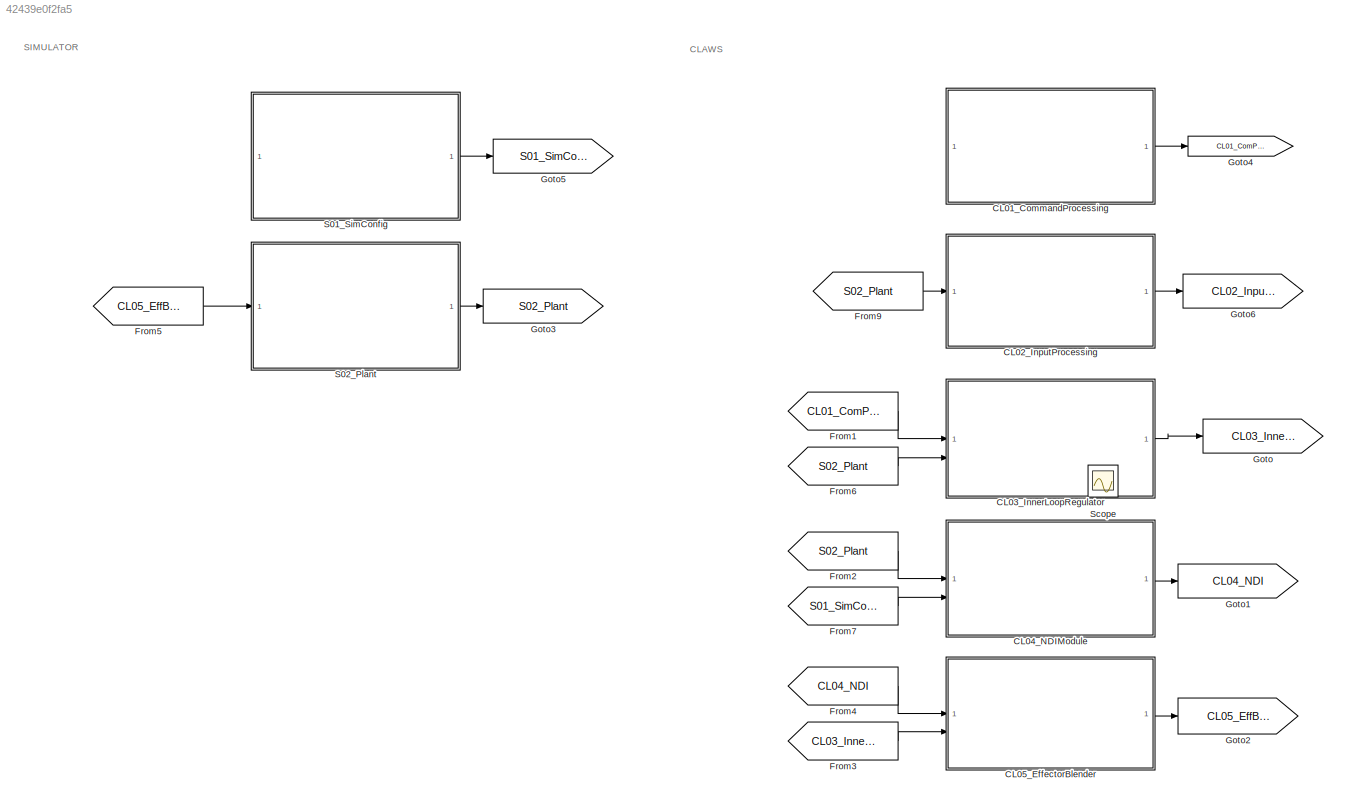
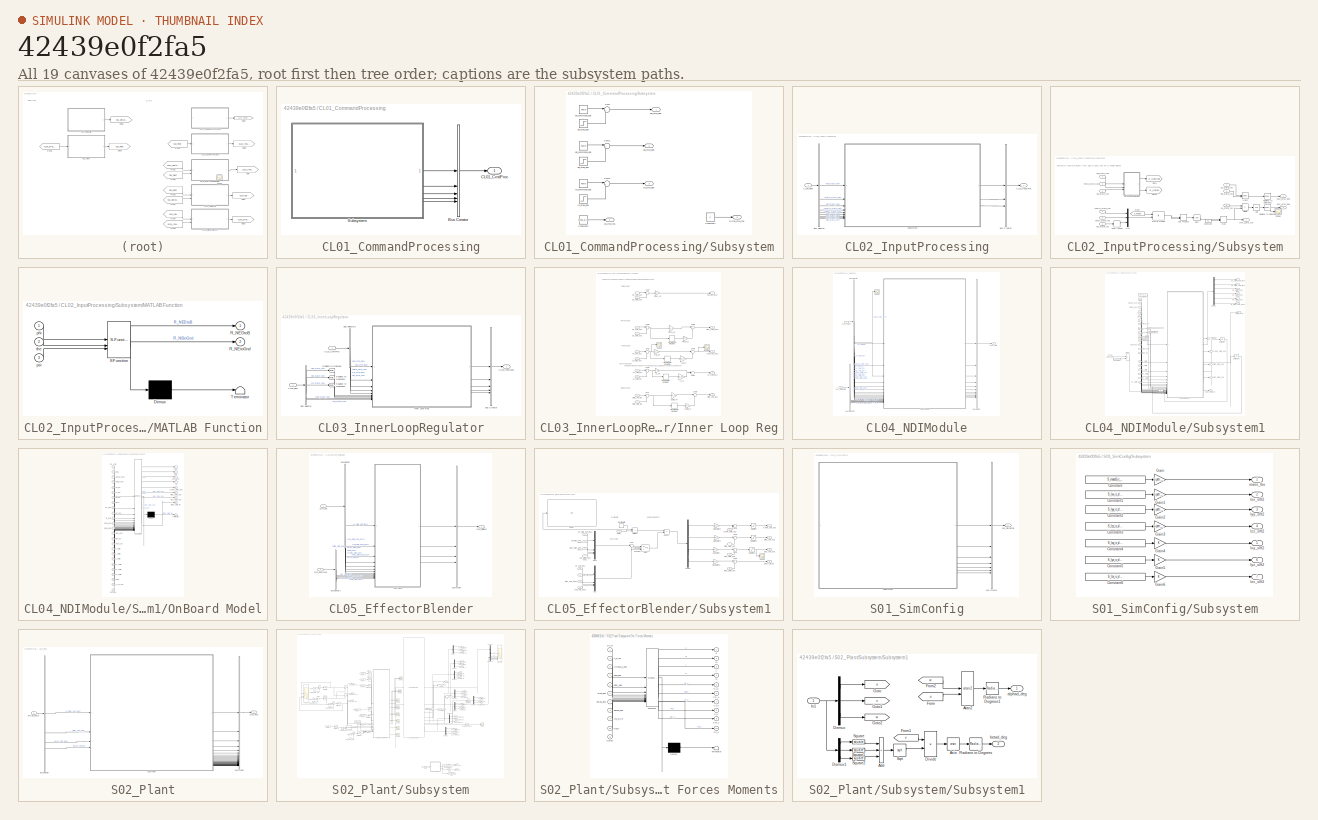
[diagram: thumbnail index - all 19 canvases of the model, root first then tree order]
MODEL slx_42439e0f2fa5
KIND model
CONFIG AbsTol = auto
CONFIG EnableMultiTasking = off
CONFIG FixedStep = 0.01
CONFIG InitFcn = top_level_sim_init()
CONFIG MaxStep = auto
CONFIG MinStep = auto
CONFIG RelTol = 1e-3
CONFIG SampleTimeConstraint = Unconstrained
CONFIG SolverName = FixedStepAuto
CONFIG StartTime = 0.0
CONFIG StopTime = 5
WORKSPACE source: mxarray member
WORKSPACE Kp_roll_regulator = 1
BLOCK [SubSystem] CL01_CommandProcessing
BLOCK [BusCreator] CL01_CommandProcessing/Bus Creator
  DisplayOption = bar
  InheritFromInputs = off
  Inputs = 5
  OutDataTypeStr = Bus: B_CL01_ComProc
BLOCK [Outport] CL01_CommandProcessing/CL01_CmdProc
BLOCK [SubSystem] CL01_CommandProcessing/Subsystem
BLOCK [Constant] CL01_CommandProcessing/Subsystem/Constant3
  Value = S_ub0_ic_fps
BLOCK [Constant] CL01_CommandProcessing/Subsystem/Constant4
  Value = 0
BLOCK [Sum] CL01_CommandProcessing/Subsystem/Sum
  Inputs = |++
BLOCK [Sum] CL01_CommandProcessing/Subsystem/Sum1
  Inputs = |++
BLOCK [Sum] CL01_CommandProcessing/Subsystem/Sum2
  Inputs = |++
BLOCK [Outport] CL01_CommandProcessing/Subsystem/as_cmd_fps
  Port = 4
BLOCK [Outport] CL01_CommandProcessing/Subsystem/climb_cmd_fps
  Port = 5
BLOCK [Outport] CL01_CommandProcessing/Subsystem/pb_cmd_dps
BLOCK [Reference] CL01_CommandProcessing/Subsystem/pb_command_dps  REF=simulink/Sources/Ramp
  SourceBlock = simulink/Sources/Ramp
  SourceType = Ramp
BLOCK [Step] CL01_CommandProcessing/Subsystem/pb_step_dps
  After = 0
  SampleTime = 0
BLOCK [Outport] CL01_CommandProcessing/Subsystem/qb_cmd_dps
  Port = 2
BLOCK [Reference] CL01_CommandProcessing/Subsystem/qb_command_dps  REF=simulink/Sources/Ramp
  SourceBlock = simulink/Sources/Ramp
  SourceType = Ramp
BLOCK [Step] CL01_CommandProcessing/Subsystem/qb_step_dps
  After = 0
  SampleTime = 0
BLOCK [Outport] CL01_CommandProcessing/Subsystem/rb_cmd_dps
  Port = 3
BLOCK [Reference] CL01_CommandProcessing/Subsystem/rb_command_dps  REF=simulink/Sources/Ramp
  SourceBlock = simulink/Sources/Ramp
  SourceType = Ramp
BLOCK [Step] CL01_CommandProcessing/Subsystem/rb_step_dps
  SampleTime = 0
BLOCK [SubSystem] CL02_InputProcessing
BLOCK [BusCreator] CL02_InputProcessing/Bus Creator
  DisplayOption = bar
  InheritFromInputs = off
  Inputs = 3
  OutDataTypeStr = Bus: B_CL02_InputProcessing
BLOCK [BusSelector] CL02_InputProcessing/Bus Selector
  OutputSignals = phi_state_rad,theta_state_rad,psi_state_rad,vnorth_state_fps,veast_state_fps,vup_state_fps,ub_state_fps,vb_state_fps,wb_state_fps
BLOCK [Outport] CL02_InputProcessing/CL02_InputProc
BLOCK [Inport] CL02_InputProcessing/CL06_Plant
BLOCK [SubSystem] CL02_InputProcessing/Subsystem
BLOCK [Trigonometry] CL02_InputProcessing/Subsystem/Asin
  Operator = asin
BLOCK [Trigonometry] CL02_InputProcessing/Subsystem/Atan2
  Operator = atan2
BLOCK [Constant] CL02_InputProcessing/Subsystem/Constant
  Value = 0.1
BLOCK [Product] CL02_InputProcessing/Subsystem/Divide
  Inputs = */
BLOCK [DotProduct] CL02_InputProcessing/Subsystem/Dot Product
  OutDataTypeStr = Inherit: Inherit via internal rule
BLOCK [From] CL02_InputProcessing/Subsystem/From
  GotoTag = R_NEDtoB
BLOCK [Goto] CL02_InputProcessing/Subsystem/Goto
  GotoTag = R_NEDtoB
BLOCK [Goto] CL02_InputProcessing/Subsystem/Goto1
  GotoTag = R_NEtoG
BLOCK [SubSystem] CL02_InputProcessing/Subsystem/MATLAB Function
  ErrorFcn = Stateflow.Translate.translate
  PermitHierarchicalResolution = ExplicitOnly
  SFBlockType = MATLAB Function
  TreatAsAtomicUnit = on
BLOCK [Demux] CL02_InputProcessing/Subsystem/MATLAB Function/ Demux 
  Outputs = 1
BLOCK [S-Function] CL02_InputProcessing/Subsystem/MATLAB Function/ SFunction 
  EnableBusSupport = on
  FunctionName = sf_sfun
  PortCounts = [3 3]
  SFcnIsStateOwnerBlock = off
  SFunctionDeploymentMode = off
  Tag = Stateflow S-Function 3
BLOCK [Terminator] CL02_InputProcessing/Subsystem/MATLAB Function/ Terminator 
BLOCK [Outport] CL02_InputProcessing/Subsystem/MATLAB Function/R_NEDtoB
BLOCK [Outport] CL02_InputProcessing/Subsystem/MATLAB Function/R_NEtoGnd
  Port = 2
BLOCK [Inport] CL02_InputProcessing/Subsystem/MATLAB Function/phi
BLOCK [Inport] CL02_InputProcessing/Subsystem/MATLAB Function/psi
  Port = 3
BLOCK [Inport] CL02_InputProcessing/Subsystem/MATLAB Function/the
  Port = 2
BLOCK [Product] CL02_InputProcessing/Subsystem/Matrix Multiply
  Multiplication = Matrix(*)
BLOCK [MinMax] CL02_InputProcessing/Subsystem/Max
  Function = max
  Inputs = 2
BLOCK [Mux] CL02_InputProcessing/Subsystem/Mux
  DisplayOption = bar
  Inputs = 3
BLOCK [Reference] CL02_InputProcessing/Subsystem/Radians to Degrees  REF=simulink_extras/Transformations/Radians
to Degrees
  SourceBlock = simulink_extras/Transformations/Radians\nto Degrees
  SourceType = RadiansToDegrees
BLOCK [Reference] CL02_InputProcessing/Subsystem/Radians to Degrees1  REF=simulink_extras/Transformations/Radians
to Degrees
  SourceBlock = simulink_extras/Transformations/Radians\nto Degrees
  SourceType = RadiansToDegrees
BLOCK [Scope] CL02_InputProcessing/Subsystem/Scope
  Floating = off
  NumInputPorts = 1
  ScopeSpecificationString = Simulink.scopes.TimeScopeBlockCfg('CurrentConfiguration', extmgr.ConfigurationSet(extmgr.Configuration('Core','General UI',true),extmgr.Configuration('Core','Source UI',true),extmgr.Configuration('Sources','WiredSimulink',true,'DataLoggingVariableName','ScopeData1'),extmgr.Configuration('Visuals','Time Domain',true),extmgr.Configuration('Tools','Plot Navigation',true),extmgr.Configuration('Tools',...<+40ch>
BLOCK [Sqrt] CL02_InputProcessing/Subsystem/Sqrt
BLOCK [UnaryMinus] CL02_InputProcessing/Subsystem/Unary Minus
BLOCK [Outport] CL02_InputProcessing/Subsystem/aoa_i_proc_deg
  Port = 3
BLOCK [Outport] CL02_InputProcessing/Subsystem/aos_i_proc_deg
  Port = 2
BLOCK [Inport] CL02_InputProcessing/Subsystem/phi_state_rad
BLOCK [Inport] CL02_InputProcessing/Subsystem/psi_state_rad
  Port = 3
BLOCK [Inport] CL02_InputProcessing/Subsystem/theta_state_rad
  Port = 2
BLOCK [Inport] CL02_InputProcessing/Subsystem/ub_state_fps
  Port = 7
BLOCK [Inport] CL02_InputProcessing/Subsystem/vb_state_fps
  Port = 8
BLOCK [Inport] CL02_InputProcessing/Subsystem/veast_state_fps
  Port = 5
BLOCK [Inport] CL02_InputProcessing/Subsystem/vnorth_state_fps
  Port = 4
BLOCK [Outport] CL02_InputProcessing/Subsystem/vtot_i_proc_fps
BLOCK [Inport] CL02_InputProcessing/Subsystem/vup_state_fps
  Port = 6
BLOCK [Inport] CL02_InputProcessing/Subsystem/wb_state_fps
  Port = 9
BLOCK [SubSystem] CL03_InnerLoopRegulator
BLOCK [BusCreator] CL03_InnerLoopRegulator/Bus Creator
  DisplayOption = bar
  InheritFromInputs = off
  Inputs = 5
  OutDataTypeStr = Bus: B_CL03_InnerLoop
BLOCK [BusSelector] CL03_InnerLoopRegulator/Bus Selector
  OutputSignals = pb_state_rps,qb_state_rps,rb_state_rps,vup_state_fps,ub_state_fps
BLOCK [BusSelector] CL03_InnerLoopRegulator/Bus Selector2
  OutputSignals = pb_cmd_dps,qb_cmd_dps,rb_cmd_dps,as_cmd_fps,climb_cmd_fps
BLOCK [Inport] CL03_InnerLoopRegulator/CL01_ComProc
BLOCK [Outport] CL03_InnerLoopRegulator/CL03_InnerLoop
BLOCK [Inport] CL03_InnerLoopRegulator/CL06_Plant
  Port = 2
BLOCK [SubSystem] CL03_InnerLoopRegulator/Inner Loop Reg
BLOCK [Gain] CL03_InnerLoopRegulator/Inner Loop Reg/AS_KI
  Gain = cl03_as_ki
BLOCK [Gain] CL03_InnerLoopRegulator/Inner Loop Reg/AS_KP
  Gain = cl03_as_kp
BLOCK [Gain] CL03_InnerLoopRegulator/Inner Loop Reg/CLIMB_KI
  Gain = cl03_climb_ki
BLOCK [Gain] CL03_InnerLoopRegulator/Inner Loop Reg/CLIMB_KP
  Gain = cl03_climb_kp
BLOCK [DiscreteIntegrator] CL03_InnerLoopRegulator/Inner Loop Reg/Discrete-Time Integrator
  ICPrevOutput = DiscIntNeverNeededParam
  ICPrevScaledInput = DiscIntNeverNeededParam
  InitialConditionSetting = Auto
  SampleTime = -1
BLOCK [DiscreteIntegrator] CL03_InnerLoopRegulator/Inner Loop Reg/Discrete-Time Integrator1
  ICPrevOutput = DiscIntNeverNeededParam
  ICPrevScaledInput = DiscIntNeverNeededParam
  InitialConditionSetting = Auto
  SampleTime = -1
BLOCK [DiscreteIntegrator] CL03_InnerLoopRegulator/Inner Loop Reg/Discrete-Time Integrator2
  ICPrevOutput = DiscIntNeverNeededParam
  ICPrevScaledInput = DiscIntNeverNeededParam
  InitialConditionSetting = Auto
  SampleTime = -1
BLOCK [DiscreteIntegrator] CL03_InnerLoopRegulator/Inner Loop Reg/Discrete-Time Integrator3
  ICPrevOutput = DiscIntNeverNeededParam
  ICPrevScaledInput = DiscIntNeverNeededParam
  InitialConditionSetting = Auto
  SampleTime = -1
BLOCK [Gain] CL03_InnerLoopRegulator/Inner Loop Reg/PITCH_KI
  Gain = cl03_pitch_ki
BLOCK [Gain] CL03_InnerLoopRegulator/Inner Loop Reg/PITCH_KP
  Gain = cl03_pitch_kp
BLOCK [Gain] CL03_InnerLoopRegulator/Inner Loop Reg/ROLL_KP
  Gain = cl03_roll_kp
BLOCK [Scope] CL03_InnerLoopRegulator/Inner Loop Reg/Scope
  Floating = off
  NumInputPorts = 1
  ScopeSpecificationString = Simulink.scopes.TimeScopeBlockCfg('CurrentConfiguration', extmgr.ConfigurationSet(extmgr.Configuration('Core','General UI',true),extmgr.Configuration('Core','Source UI',true),extmgr.Configuration('Sources','WiredSimulink',true,'DataLoggingVariableName','ScopeData2'),extmgr.Configuration('Visuals','Time Domain',true,'SerializedDisplays',{struct('MinYLimReal','-0.05157','MaxYLimReal','0.03274','YLab...<+1452ch>
BLOCK [Scope] CL03_InnerLoopRegulator/Inner Loop Reg/Scope1
  Floating = off
  NumInputPorts = 1
  ScopeSpecificationString = Simulink.scopes.TimeScopeBlockCfg('CurrentConfiguration', extmgr.ConfigurationSet(extmgr.Configuration('Core','General UI',true),extmgr.Configuration('Core','Source UI',true),extmgr.Configuration('Sources','WiredSimulink',true,'DataLoggingVariableName','ScopeData3'),extmgr.Configuration('Visuals','Time Domain',true,'SerializedDisplays',{struct('MinYLimReal','-0.10315','MaxYLimReal','0.06548','YLab...<+1452ch>
BLOCK [Sum] CL03_InnerLoopRegulator/Inner Loop Reg/Sum
  Inputs = |+-
BLOCK [Sum] CL03_InnerLoopRegulator/Inner Loop Reg/Sum1
  Inputs = |+-
BLOCK [Sum] CL03_InnerLoopRegulator/Inner Loop Reg/Sum2
  Inputs = |+-
BLOCK [Sum] CL03_InnerLoopRegulator/Inner Loop Reg/Sum3
  Inputs = |+-
BLOCK [Sum] CL03_InnerLoopRegulator/Inner Loop Reg/Sum4
  Inputs = |+-
BLOCK [Sum] CL03_InnerLoopRegulator/Inner Loop Reg/Sum5
  Inputs = |++
BLOCK [Sum] CL03_InnerLoopRegulator/Inner Loop Reg/Sum6
  Inputs = |++
BLOCK [Sum] CL03_InnerLoopRegulator/Inner Loop Reg/Sum7
  Inputs = |+++
BLOCK [Sum] CL03_InnerLoopRegulator/Inner Loop Reg/Sum8
  Inputs = |++
BLOCK [Gain] CL03_InnerLoopRegulator/Inner Loop Reg/YAW_KI
  Gain = cl03_yaw_ki
BLOCK [Gain] CL03_InnerLoopRegulator/Inner Loop Reg/YAW_KP
  Gain = cl03_yaw_kp
BLOCK [Inport] CL03_InnerLoopRegulator/Inner Loop Reg/as_cmd_fps
  Port = 4
BLOCK [Outport] CL03_InnerLoopRegulator/Inner Loop Reg/as_cmd_fps2
  Port = 4
BLOCK [Inport] CL03_InnerLoopRegulator/Inner Loop Reg/as_state_fps
  Port = 10
BLOCK [Inport] CL03_InnerLoopRegulator/Inner Loop Reg/climb_cmd_fps
  Port = 5
BLOCK [Outport] CL03_InnerLoopRegulator/Inner Loop Reg/climb_cmd_fps2
  Port = 5
BLOCK [Inport] CL03_InnerLoopRegulator/Inner Loop Reg/climb_state_fps
  Port = 9
BLOCK [Inport] CL03_InnerLoopRegulator/Inner Loop Reg/pb_cmd_dps
BLOCK [Inport] CL03_InnerLoopRegulator/Inner Loop Reg/pb_state_dps
  Port = 6
BLOCK [Outport] CL03_InnerLoopRegulator/Inner Loop Reg/pitch_cmd_dps2
  Port = 2
BLOCK [Inport] CL03_InnerLoopRegulator/Inner Loop Reg/qb_cmd_dps
  Port = 2
BLOCK [Inport] CL03_InnerLoopRegulator/Inner Loop Reg/qb_state_dps
  Port = 7
BLOCK [Inport] CL03_InnerLoopRegulator/Inner Loop Reg/rb_cmd_dps
  Port = 3
BLOCK [Inport] CL03_InnerLoopRegulator/Inner Loop Reg/rb_state_dps
  Port = 8
BLOCK [Outport] CL03_InnerLoopRegulator/Inner Loop Reg/roll_cmd_dps2
BLOCK [Outport] CL03_InnerLoopRegulator/Inner Loop Reg/yaw_cmd_dps2
  Port = 3
BLOCK [Reference] CL03_InnerLoopRegulator/Radians to Degrees  REF=simulink_extras/Transformations/Radians
to Degrees
  SourceBlock = simulink_extras/Transformations/Radians\nto Degrees
  SourceType = RadiansToDegrees
BLOCK [Reference] CL03_InnerLoopRegulator/Radians to Degrees1  REF=simulink_extras/Transformations/Radians
to Degrees
  SourceBlock = simulink_extras/Transformations/Radians\nto Degrees
  SourceType = RadiansToDegrees
BLOCK [Reference] CL03_InnerLoopRegulator/Radians to Degrees2  REF=simulink_extras/Transformations/Radians
to Degrees
  SourceBlock = simulink_extras/Transformations/Radians\nto Degrees
  SourceType = RadiansToDegrees
BLOCK [SubSystem] CL04_NDIModule
BLOCK [BusCreator] CL04_NDIModule/Bus Creator
  DisplayOption = bar
  InheritFromInputs = off
  Inputs = 11
  OutDataTypeStr = Bus: B_CL04_NDI
BLOCK [BusSelector] CL04_NDIModule/Bus Selector
  OutputSignals = R_NEDtoB,alphad_state_deg,betad_state_deg,ub_state_fps,vb_state_fps,wb_state_fps,mach_state_nd,pb_state_rps,qb_state_rps,rb_state_rps,delvl_state_deg,delvr_state_deg,drud_state_deg,fprop_state_lbs
BLOCK [BusSelector] CL04_NDIModule/Bus Selector2
  OutputSignals = Ixx_slft2,Iyy_slft2,Izz_slft2,Ixy_slft2,Iyz_slft2,Izx_slft2,mass_lbs
BLOCK [Outport] CL04_NDIModule/CL04_NDI
BLOCK [Inport] CL04_NDIModule/CL06_Plant
BLOCK [Inport] CL04_NDIModule/S01_SimConfig
  Port = 2
BLOCK [Scope] CL04_NDIModule/Scope
  Floating = off
  NumInputPorts = 1
  ScopeSpecificationString = Simulink.scopes.TimeScopeBlockCfg('CurrentConfiguration', extmgr.ConfigurationSet(extmgr.Configuration('Core','General UI',true),extmgr.Configuration('Core','Source UI',true),extmgr.Configuration('Sources','WiredSimulink',true,'DataLoggingVariableName','ScopeData13'),extmgr.Configuration('Visuals','Time Domain',true,'SerializedDisplays',{struct('MinYLimReal','-0.04554','MaxYLimReal','0.01928','YLa...<+1466ch>
BLOCK [SubSystem] CL04_NDIModule/Subsystem1
BLOCK [Outport] CL04_NDIModule/Subsystem1/Bmat_obm
  Port = 7
BLOCK [Constant] CL04_NDIModule/Subsystem1/Constant
BLOCK [Constant] CL04_NDIModule/Subsystem1/Constant1
  Value = 32.174
BLOCK [Constant] CL04_NDIModule/Subsystem1/Constant4
  Value = S_rho_ic_slft3
BLOCK [Inport] CL04_NDIModule/Subsystem1/DCM
BLOCK [Demux] CL04_NDIModule/Subsystem1/Demux
  Outputs = 6
BLOCK [Product] CL04_NDIModule/Subsystem1/Divide
  Inputs = */
BLOCK [Inport] CL04_NDIModule/Subsystem1/Ix_slgft2
  Port = 15
BLOCK [Inport] CL04_NDIModule/Subsystem1/Ixy_slgft2
  Port = 18
BLOCK [Inport] CL04_NDIModule/Subsystem1/Ixz_slgft2
  Port = 20
BLOCK [Inport] CL04_NDIModule/Subsystem1/Iy_slgft2
  Port = 16
BLOCK [Inport] CL04_NDIModule/Subsystem1/Iyz_slgft2
  Port = 19
BLOCK [Inport] CL04_NDIModule/Subsystem1/Iz_slgft2
  Port = 17
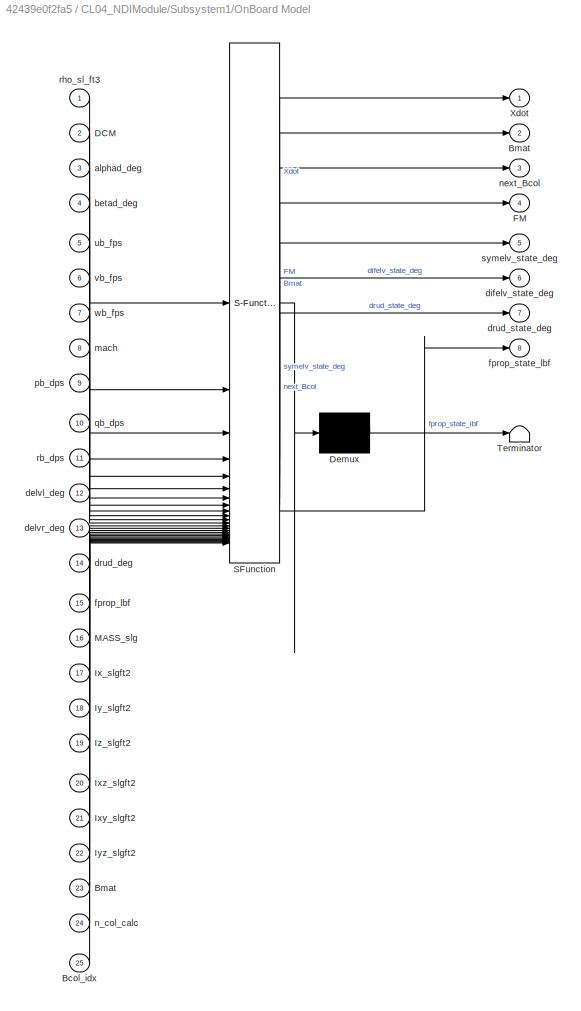
BLOCK [SubSystem] CL04_NDIModule/Subsystem1/OnBoard Model
  ErrorFcn = Stateflow.Translate.translate
  PermitHierarchicalResolution = ExplicitOnly
  SFBlockType = MATLAB Function
  TreatAsAtomicUnit = on
BLOCK [Demux] CL04_NDIModule/Subsystem1/OnBoard Model/ Demux 
  Outputs = 1
BLOCK [S-Function] CL04_NDIModule/Subsystem1/OnBoard Model/ SFunction 
  EnableBusSupport = on
  FunctionName = sf_sfun
  PortCounts = [25 9]
  SFcnIsStateOwnerBlock = off
  SFunctionDeploymentMode = off
  Tag = Stateflow S-Function 1
BLOCK [Terminator] CL04_NDIModule/Subsystem1/OnBoard Model/ Terminator 
BLOCK [Inport] CL04_NDIModule/Subsystem1/OnBoard Model/Bcol_idx
  Port = 25
BLOCK [Outport] CL04_NDIModule/Subsystem1/OnBoard Model/Bmat
  Port = 2
BLOCK [Inport] CL04_NDIModule/Subsystem1/OnBoard Model/Bmat 
  Port = 23
BLOCK [Inport] CL04_NDIModule/Subsystem1/OnBoard Model/DCM
  Port = 2
BLOCK [Outport] CL04_NDIModule/Subsystem1/OnBoard Model/FM
  Port = 4
BLOCK [Inport] CL04_NDIModule/Subsystem1/OnBoard Model/Ix_slgft2
  Port = 17
BLOCK [Inport] CL04_NDIModule/Subsystem1/OnBoard Model/Ixy_slgft2
  Port = 21
BLOCK [Inport] CL04_NDIModule/Subsystem1/OnBoard Model/Ixz_slgft2
  Port = 20
BLOCK [Inport] CL04_NDIModule/Subsystem1/OnBoard Model/Iy_slgft2
  Port = 18
BLOCK [Inport] CL04_NDIModule/Subsystem1/OnBoard Model/Iyz_slgft2
  Port = 22
BLOCK [Inport] CL04_NDIModule/Subsystem1/OnBoard Model/Iz_slgft2
  Port = 19
BLOCK [Inport] CL04_NDIModule/Subsystem1/OnBoard Model/MASS_slg
  Port = 16
BLOCK [Outport] CL04_NDIModule/Subsystem1/OnBoard Model/Xdot
BLOCK [Inport] CL04_NDIModule/Subsystem1/OnBoard Model/alphad_deg
  Port = 3
BLOCK [Inport] CL04_NDIModule/Subsystem1/OnBoard Model/betad_deg
  Port = 4
BLOCK [Inport] CL04_NDIModule/Subsystem1/OnBoard Model/delvl_deg
  Port = 12
BLOCK [Inport] CL04_NDIModule/Subsystem1/OnBoard Model/delvr_deg
  Port = 13
BLOCK [Outport] CL04_NDIModule/Subsystem1/OnBoard Model/difelv_state_deg
  Port = 6
BLOCK [Inport] CL04_NDIModule/Subsystem1/OnBoard Model/drud_deg
  Port = 14
BLOCK [Outport] CL04_NDIModule/Subsystem1/OnBoard Model/drud_state_deg
  Port = 7
BLOCK [Inport] CL04_NDIModule/Subsystem1/OnBoard Model/fprop_lbf
  Port = 15
BLOCK [Outport] CL04_NDIModule/Subsystem1/OnBoard Model/fprop_state_lbf
  Port = 8
BLOCK [Inport] CL04_NDIModule/Subsystem1/OnBoard Model/mach
  Port = 8
BLOCK [Inport] CL04_NDIModule/Subsystem1/OnBoard Model/n_col_calc
  Port = 24
BLOCK [Outport] CL04_NDIModule/Subsystem1/OnBoard Model/next_Bcol
  Port = 3
BLOCK [Inport] CL04_NDIModule/Subsystem1/OnBoard Model/pb_dps
  Port = 9
BLOCK [Inport] CL04_NDIModule/Subsystem1/OnBoard Model/qb_dps
  Port = 10
BLOCK [Inport] CL04_NDIModule/Subsystem1/OnBoard Model/rb_dps
  Port = 11
BLOCK [Inport] CL04_NDIModule/Subsystem1/OnBoard Model/rho_sl_ft3
BLOCK [Outport] CL04_NDIModule/Subsystem1/OnBoard Model/symelv_state_deg
  Port = 5
BLOCK [Inport] CL04_NDIModule/Subsystem1/OnBoard Model/ub_fps
  Port = 5
BLOCK [Inport] CL04_NDIModule/Subsystem1/OnBoard Model/vb_fps
  Port = 6
BLOCK [Inport] CL04_NDIModule/Subsystem1/OnBoard Model/wb_fps
  Port = 7
BLOCK [Reference] CL04_NDIModule/Subsystem1/Radians to Degrees  REF=simulink_extras/Transformations/Radians
to Degrees
  SourceBlock = simulink_extras/Transformations/Radians\nto Degrees
  SourceType = RadiansToDegrees
BLOCK [Reference] CL04_NDIModule/Subsystem1/Radians to Degrees1  REF=simulink_extras/Transformations/Radians
to Degrees
  SourceBlock = simulink_extras/Transformations/Radians\nto Degrees
  SourceType = RadiansToDegrees
BLOCK [Reference] CL04_NDIModule/Subsystem1/Radians to Degrees2  REF=simulink_extras/Transformations/Radians
to Degrees
  SourceBlock = simulink_extras/Transformations/Radians\nto Degrees
  SourceType = RadiansToDegrees
BLOCK [Terminator] CL04_NDIModule/Subsystem1/Terminator
BLOCK [UnitDelay] CL04_NDIModule/Subsystem1/Unit Delay
  HasFrameUpgradeWarning = on
  InitialCondition = 1
  SampleTime = -1
BLOCK [UnitDelay] CL04_NDIModule/Subsystem1/Unit Delay1
  HasFrameUpgradeWarning = on
  InitialCondition = CL04_Bmat0_ic
  SampleTime = -1
BLOCK [Inport] CL04_NDIModule/Subsystem1/alphad_deg
  Port = 2
BLOCK [Inport] CL04_NDIModule/Subsystem1/betad_deg
  Port = 3
BLOCK [Inport] CL04_NDIModule/Subsystem1/delvl_deg
  Port = 11
BLOCK [Inport] CL04_NDIModule/Subsystem1/delvr_deg
  Port = 12
BLOCK [Outport] CL04_NDIModule/Subsystem1/difelv_state_deg
  Port = 9
BLOCK [Inport] CL04_NDIModule/Subsystem1/drud_deg
  Port = 13
BLOCK [Outport] CL04_NDIModule/Subsystem1/drud_state_deg
  Port = 10
BLOCK [Inport] CL04_NDIModule/Subsystem1/fprop_lbf
  Port = 14
BLOCK [Outport] CL04_NDIModule/Subsystem1/fprop_state_lbf
  Port = 11
BLOCK [Inport] CL04_NDIModule/Subsystem1/mach_nd
  Port = 7
BLOCK [Inport] CL04_NDIModule/Subsystem1/mass_lbs
  Port = 21
BLOCK [Inport] CL04_NDIModule/Subsystem1/pb_rps
  Port = 8
BLOCK [Outport] CL04_NDIModule/Subsystem1/pb_state_obm_dps2
  Port = 4
BLOCK [Inport] CL04_NDIModule/Subsystem1/qb_rps
  Port = 9
BLOCK [Outport] CL04_NDIModule/Subsystem1/qb_state_obm_dps2
  Port = 5
BLOCK [Inport] CL04_NDIModule/Subsystem1/rb_rps
  Port = 10
BLOCK [Outport] CL04_NDIModule/Subsystem1/rb_state_obm_dps2
  Port = 6
BLOCK [Outport] CL04_NDIModule/Subsystem1/symelv_state_deg
  Port = 8
BLOCK [Inport] CL04_NDIModule/Subsystem1/ub_fps
  Port = 4
BLOCK [Outport] CL04_NDIModule/Subsystem1/ub_state_obm_fps2
BLOCK [Inport] CL04_NDIModule/Subsystem1/vb_fps
  Port = 5
BLOCK [Outport] CL04_NDIModule/Subsystem1/vb_state_obm_fps2
  Port = 2
BLOCK [Inport] CL04_NDIModule/Subsystem1/wb_fps
  Port = 6
BLOCK [Outport] CL04_NDIModule/Subsystem1/wb_state_obm_fps2
  Port = 3
BLOCK [SubSystem] CL05_EffectorBlender
BLOCK [BusCreator] CL05_EffectorBlender/Bus Creator
  DisplayOption = bar
  InheritFromInputs = off
  Inputs = 4
  OutDataTypeStr = Bus: B_CL05_EffBlend
BLOCK [BusSelector] CL05_EffectorBlender/Bus Selector
  OutputSignals = u_state_obm_fps2,roll_state_obm_dps2,pitch_state_obm_dps2,yaw_state_obm_dps2,Bmat_obm,symelv_state_deg,difelv_state_deg,drud_state_deg,fprop_state_lbf
BLOCK [BusSelector] CL05_EffectorBlender/Bus Selector1
  OutputSignals = as_cmd_fps2,roll_cmd_dps2,pitch_cmd_dps2,yaw_cmd_dps2
BLOCK [Inport] CL05_EffectorBlender/CL03_InnerLoop
  Port = 2
BLOCK [Inport] CL05_EffectorBlender/CL04_NDI
BLOCK [Outport] CL05_EffectorBlender/CL05_EffBlend
BLOCK [SubSystem] CL05_EffectorBlender/Subsystem1
BLOCK [Inport] CL05_EffectorBlender/Subsystem1/Bmat
  Port = 5
BLOCK [Gain] CL05_EffectorBlender/Subsystem1/ClawSwitch
  Gain = cl05_clawswitch
BLOCK [Gain] CL05_EffectorBlender/Subsystem1/ClawSwitch1
  Gain = cl05_clawswitch
BLOCK [Gain] CL05_EffectorBlender/Subsystem1/ClawSwitch2
  Gain = cl05_clawswitch
BLOCK [Gain] CL05_EffectorBlender/Subsystem1/ClawSwitch3
  Gain = cl05_clawswitch
BLOCK [Constant] CL05_EffectorBlender/Subsystem1/Constant
  Value = cl05_INDIswitch
BLOCK [Demux] CL05_EffectorBlender/Subsystem1/Demux
BLOCK [Display] CL05_EffectorBlender/Subsystem1/Display
  Decimation = 1
BLOCK [IdentityMatrix] CL05_EffectorBlender/Subsystem1/IdentityMatrix
  OutputDimensions = 4
BLOCK [Product] CL05_EffectorBlender/Subsystem1/Matrix Inv
  Inputs = */
  Multiplication = Matrix(*)
BLOCK [Mux] CL05_EffectorBlender/Subsystem1/Mux
  DisplayOption = bar
BLOCK [Mux] CL05_EffectorBlender/Subsystem1/Mux1
  DisplayOption = bar
BLOCK [Product] CL05_EffectorBlender/Subsystem1/Product
  Multiplication = Matrix(*)
BLOCK [Saturate] CL05_EffectorBlender/Subsystem1/Saturation
  LowerLimit = S_elev_rngdn_deg
  UpperLimit = S_elev_rngup_deg
BLOCK [Saturate] CL05_EffectorBlender/Subsystem1/Saturation1
  LowerLimit = S_elev_rngdn_deg
  UpperLimit = S_elev_rngup_deg
BLOCK [Saturate] CL05_EffectorBlender/Subsystem1/Saturation2
  LowerLimit = S_rud_rngdn_deg
  UpperLimit = S_rud_rngup_deg
BLOCK [Scope] CL05_EffectorBlender/Subsystem1/Scope
  Floating = off
  NumInputPorts = 1
  ScopeSpecificationString = Simulink.scopes.TimeScopeBlockCfg('CurrentConfiguration', extmgr.ConfigurationSet(extmgr.Configuration('Core','General UI',true),extmgr.Configuration('Core','Source UI',true),extmgr.Configuration('Sources','WiredSimulink',true,'DataLoggingVariableName','ScopeData11'),extmgr.Configuration('Visuals','Time Domain',true,'SerializedDisplays',{struct('MinYLimReal','-0.21155','MaxYLimReal','0.13485','YLa...<+1460ch>
BLOCK [Sum] CL05_EffectorBlender/Subsystem1/Sum
  Inputs = |-+
BLOCK [Sum] CL05_EffectorBlender/Subsystem1/Sum1
  Inputs = |++
BLOCK [Sum] CL05_EffectorBlender/Subsystem1/Sum2
  Inputs = |++
BLOCK [Sum] CL05_EffectorBlender/Subsystem1/Sum3
  Inputs = |++
BLOCK [Sum] CL05_EffectorBlender/Subsystem1/Sum4
  Inputs = |++
BLOCK [Switch] CL05_EffectorBlender/Subsystem1/Switch
  Criteria = u2 > Threshold
  InputSameDT = off
  SaturateOnIntegerOverflow = off
BLOCK [Outport] CL05_EffectorBlender/Subsystem1/difelv_cmd_deg
  Port = 2
BLOCK [Inport] CL05_EffectorBlender/Subsystem1/difelv_state_deg
  Port = 7
BLOCK [Outport] CL05_EffectorBlender/Subsystem1/drud_cmd_deg
  Port = 3
BLOCK [Inport] CL05_EffectorBlender/Subsystem1/drud_state_deg
  Port = 8
BLOCK [Outport] CL05_EffectorBlender/Subsystem1/fprop_cmd_lbf
  Port = 4
BLOCK [Inport] CL05_EffectorBlender/Subsystem1/fprop_state_deg
  Port = 9
BLOCK [Inport] CL05_EffectorBlender/Subsystem1/pitch_cmd_dps2
  Port = 12
BLOCK [Inport] CL05_EffectorBlender/Subsystem1/pitch_state_obm_dps2
  Port = 3
BLOCK [Inport] CL05_EffectorBlender/Subsystem1/roll_cmd_dps2
  Port = 11
BLOCK [Inport] CL05_EffectorBlender/Subsystem1/roll_state_obm_dps2
  Port = 2
BLOCK [Outport] CL05_EffectorBlender/Subsystem1/symelv_cmd_deg
BLOCK [Inport] CL05_EffectorBlender/Subsystem1/symelv_state_deg
  Port = 6
BLOCK [Inport] CL05_EffectorBlender/Subsystem1/ub_cmd_fps2
  Port = 10
BLOCK [Inport] CL05_EffectorBlender/Subsystem1/ub_state_obm_fps2
BLOCK [Inport] CL05_EffectorBlender/Subsystem1/yaw_cmd_dps2
  Port = 13
BLOCK [Inport] CL05_EffectorBlender/Subsystem1/yaw_state_obm_dps2
  Port = 4
BLOCK [From] From1
  GotoTag = CL01_ComProc
BLOCK [From] From2
  GotoTag = S02_Plant
BLOCK [From] From3
  GotoTag = CL03_InnerLoop
BLOCK [From] From4
  GotoTag = CL04_NDI
BLOCK [From] From5
  GotoTag = CL05_EffBlend
BLOCK [From] From6
  GotoTag = S02_Plant
BLOCK [From] From7
  GotoTag = S01_SimConfig
BLOCK [From] From9
  GotoTag = S02_Plant
BLOCK [Goto] Goto
  GotoTag = CL03_InnerLoop
BLOCK [Goto] Goto1
  GotoTag = CL04_NDI
BLOCK [Goto] Goto2
  GotoTag = CL05_EffBlend
BLOCK [Goto] Goto3
  GotoTag = S02_Plant
BLOCK [Goto] Goto4
  GotoTag = CL01_ComProc
BLOCK [Goto] Goto5
  GotoTag = S01_SimConfig
BLOCK [Goto] Goto6
  GotoTag = CL02_InputProc
BLOCK [SubSystem] S01_SimConfig
BLOCK [BusCreator] S01_SimConfig/Bus Creator
  DisplayOption = bar
  InheritFromInputs = off
  Inputs = 7
  OutDataTypeStr = Bus: B_S01_SimConfig
BLOCK [Outport] S01_SimConfig/S01_SimConfig
BLOCK [SubSystem] S01_SimConfig/Subsystem
BLOCK [Constant] S01_SimConfig/Subsystem/Constant
  Value = S_mass0_ic_lbs
BLOCK [Constant] S01_SimConfig/Subsystem/Constant1
  Value = S_Ixx_ic_slf2
BLOCK [Constant] S01_SimConfig/Subsystem/Constant2
  Value = S_Iyy_ic_slf2
BLOCK [Constant] S01_SimConfig/Subsystem/Constant3
  Value = S_Izz_ic_slf2
BLOCK [Constant] S01_SimConfig/Subsystem/Constant4
  Value = S_Ixy_ic_slf2
BLOCK [Constant] S01_SimConfig/Subsystem/Constant5
  Value = S_Iyz_ic_slf2
BLOCK [Constant] S01_SimConfig/Subsystem/Constant6
  Value = S_Izx_ic_slf2
BLOCK [Gain] S01_SimConfig/Subsystem/Gain
  Gain = 1+perr_mass
BLOCK [Gain] S01_SimConfig/Subsystem/Gain1
  Gain = 1+perr_Ixx
BLOCK [Gain] S01_SimConfig/Subsystem/Gain2
  Gain = 1+perr_Iyy
BLOCK [Gain] S01_SimConfig/Subsystem/Gain3
  Gain = 1+perr_Izz
BLOCK [Gain] S01_SimConfig/Subsystem/Gain4
BLOCK [Gain] S01_SimConfig/Subsystem/Gain5
BLOCK [Gain] S01_SimConfig/Subsystem/Gain6
BLOCK [Outport] S01_SimConfig/Subsystem/Ixx_slft2
  Port = 2
BLOCK [Outport] S01_SimConfig/Subsystem/Ixy_slft2
  Port = 5
BLOCK [Outport] S01_SimConfig/Subsystem/Iyy_slft2
  Port = 3
BLOCK [Outport] S01_SimConfig/Subsystem/Iyz_slft2
  Port = 6
BLOCK [Outport] S01_SimConfig/Subsystem/Izx_slft2
  Port = 7
BLOCK [Outport] S01_SimConfig/Subsystem/Izz_slft2
  Port = 4
BLOCK [Outport] S01_SimConfig/Subsystem/mass_lbs
BLOCK [SubSystem] S02_Plant
BLOCK [BusCreator] S02_Plant/Bus Creator
  AttributesFormatString = %<Inputs>
  DisplayOption = bar
  InheritFromInputs = off
  Inputs = 32
  OutDataTypeStr = Bus: B_S02_Plant
BLOCK [BusSelector] S02_Plant/Bus Selector
  OutputSignals = symelv_cmd_deg,difelv_cmd_deg,drud_cmd_deg,fprop_cmd_lbf
BLOCK [Outport] S02_Plant/CL06_Plant
BLOCK [Inport] S02_Plant/EFF_BLEND_IN
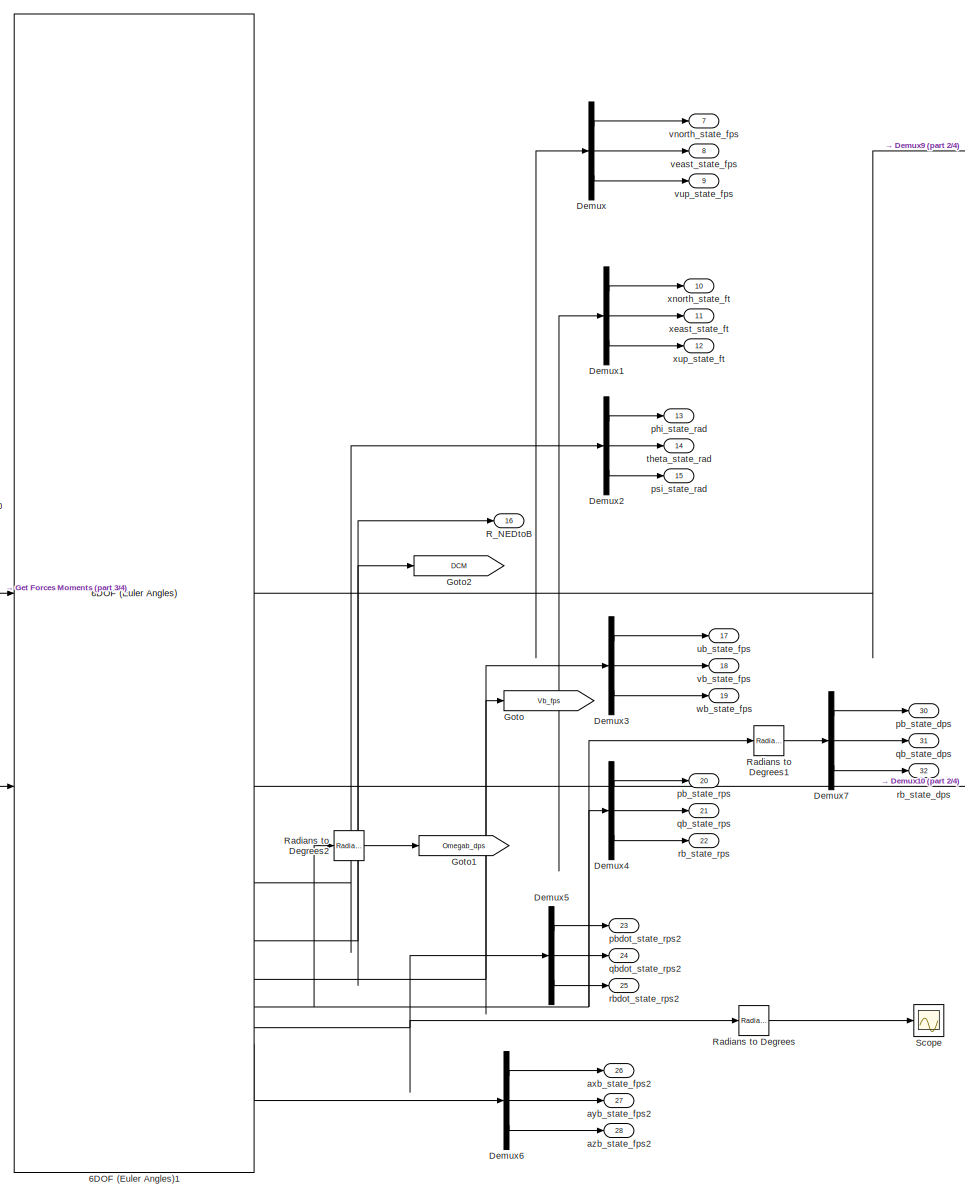
[diagram: S02_Plant/Subsystem - part 1/4, middle right region]
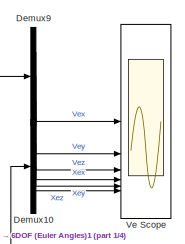
[diagram: S02_Plant/Subsystem - part 2/4, top right region]
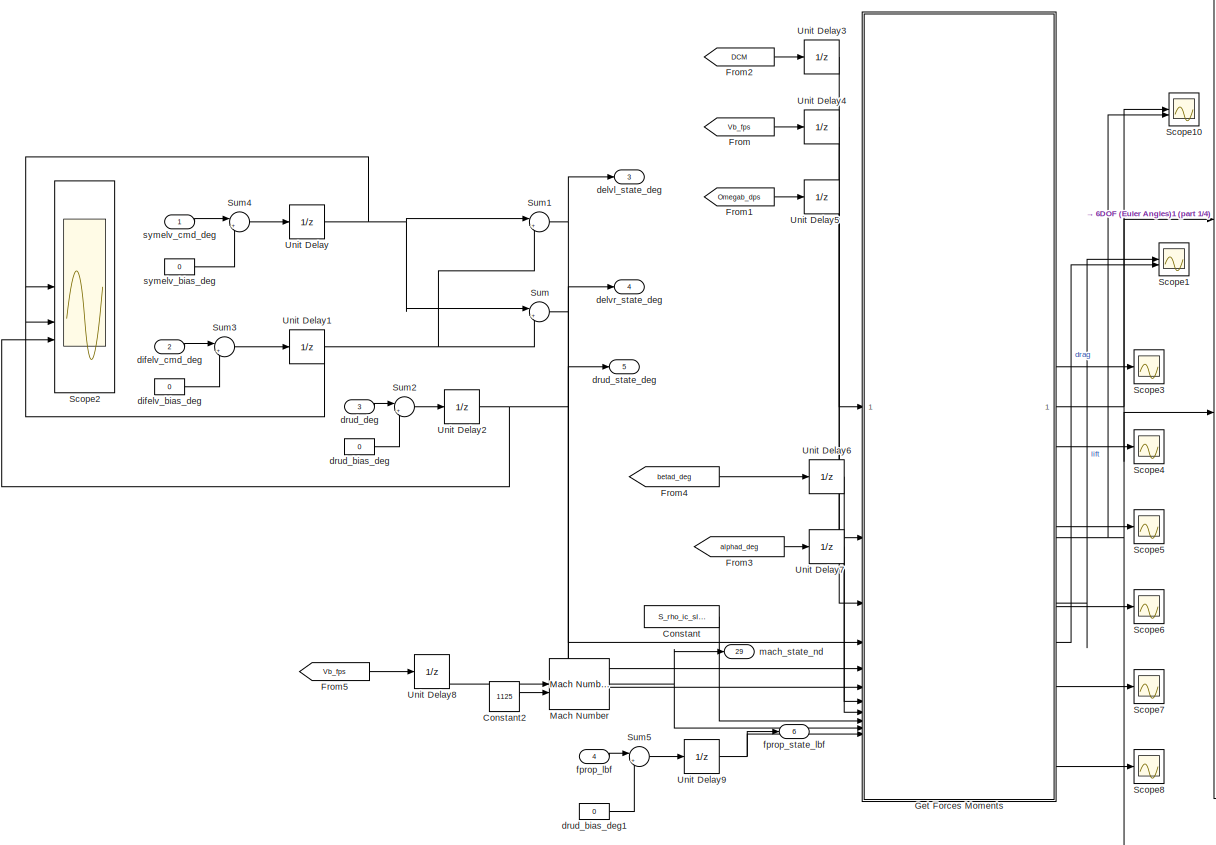
[diagram: S02_Plant/Subsystem - part 3/4, middle left region]
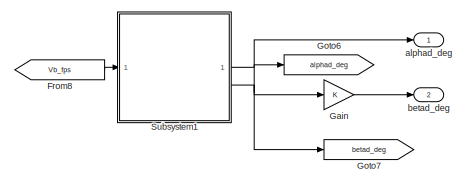
[diagram: S02_Plant/Subsystem - part 4/4, bottom right region]
BLOCK [SubSystem] S02_Plant/Subsystem
BLOCK [Reference] S02_Plant/Subsystem/6DOF (Euler Angles)1  REF=shared6dof/6DOF (Euler Angles)
  SourceBlock = shared6dof/6DOF (Euler Angles)
  SourceType = 6DOF EoM (Body Axis)
BLOCK [Constant] S02_Plant/Subsystem/Constant
  Value = S_rho_ic_slft3
BLOCK [Constant] S02_Plant/Subsystem/Constant2
  Value = 1125
BLOCK [Demux] S02_Plant/Subsystem/Demux
  Outputs = 3
BLOCK [Demux] S02_Plant/Subsystem/Demux1
  Outputs = 3
BLOCK [Demux] S02_Plant/Subsystem/Demux10
  Outputs = 3
BLOCK [Demux] S02_Plant/Subsystem/Demux2
  Outputs = 3
BLOCK [Demux] S02_Plant/Subsystem/Demux3
  Outputs = 3
BLOCK [Demux] S02_Plant/Subsystem/Demux4
  Outputs = 3
BLOCK [Demux] S02_Plant/Subsystem/Demux5
  Outputs = 3
BLOCK [Demux] S02_Plant/Subsystem/Demux6
  Outputs = 3
BLOCK [Demux] S02_Plant/Subsystem/Demux7
  Outputs = 3
BLOCK [Demux] S02_Plant/Subsystem/Demux9
  Outputs = 3
BLOCK [From] S02_Plant/Subsystem/From
  GotoTag = Vb_fps
BLOCK [From] S02_Plant/Subsystem/From1
  GotoTag = Omegab_dps
BLOCK [From] S02_Plant/Subsystem/From2
  GotoTag = DCM
BLOCK [From] S02_Plant/Subsystem/From3
  GotoTag = alphad_deg
BLOCK [From] S02_Plant/Subsystem/From4
  GotoTag = betad_deg
BLOCK [From] S02_Plant/Subsystem/From5
  GotoTag = Vb_fps
BLOCK [From] S02_Plant/Subsystem/From8
  GotoTag = Vb_fps
BLOCK [Gain] S02_Plant/Subsystem/Gain
BLOCK [SubSystem] S02_Plant/Subsystem/Get Forces Moments
  ErrorFcn = Stateflow.Translate.translate
  PermitHierarchicalResolution = ExplicitOnly
  SFBlockType = MATLAB Function
  TreatAsAtomicUnit = on
BLOCK [Demux] S02_Plant/Subsystem/Get Forces Moments/ Demux 
  Outputs = 1
BLOCK [S-Function] S02_Plant/Subsystem/Get Forces Moments/ SFunction 
  EnableBusSupport = on
  FunctionName = sf_sfun
  PortCounts = [11 11]
  SFcnIsStateOwnerBlock = off
  SFunctionDeploymentMode = off
  Tag = Stateflow S-Function 4
BLOCK [Terminator] S02_Plant/Subsystem/Get Forces Moments/ Terminator 
BLOCK [Outport] S02_Plant/Subsystem/Get Forces Moments/CD_c
  Port = 6
BLOCK [Outport] S02_Plant/Subsystem/Get Forces Moments/CL_c
  Port = 5
BLOCK [Outport] S02_Plant/Subsystem/Get Forces Moments/CY_c
  Port = 7
BLOCK [Outport] S02_Plant/Subsystem/Get Forces Moments/Cl_c
  Port = 8
BLOCK [Outport] S02_Plant/Subsystem/Get Forces Moments/Cm_c
  Port = 9
BLOCK [Outport] S02_Plant/Subsystem/Get Forces Moments/Cn_c
  Port = 10
BLOCK [Outport] S02_Plant/Subsystem/Get Forces Moments/D
  Port = 4
BLOCK [Inport] S02_Plant/Subsystem/Get Forces Moments/DCM
BLOCK [Outport] S02_Plant/Subsystem/Get Forces Moments/F
BLOCK [Inport] S02_Plant/Subsystem/Get Forces Moments/F_prop
  Port = 11
BLOCK [Outport] S02_Plant/Subsystem/Get Forces Moments/L
  Port = 3
BLOCK [Outport] S02_Plant/Subsystem/Get Forces Moments/M
  Port = 2
BLOCK [Inport] S02_Plant/Subsystem/Get Forces Moments/Omega_b_dps
  Port = 3
BLOCK [Inport] S02_Plant/Subsystem/Get Forces Moments/V_b_fps
  Port = 2
BLOCK [Inport] S02_Plant/Subsystem/Get Forces Moments/alphad_deg
  Port = 8
BLOCK [Inport] S02_Plant/Subsystem/Get Forces Moments/betad_deg
  Port = 7
BLOCK [Inport] S02_Plant/Subsystem/Get Forces Moments/delvl_deg
  Port = 4
BLOCK [Inport] S02_Plant/Subsystem/Get Forces Moments/delvr_deg
  Port = 5
BLOCK [Inport] S02_Plant/Subsystem/Get Forces Moments/drud_deg
  Port = 6
BLOCK [Inport] S02_Plant/Subsystem/Get Forces Moments/mach
  Port = 10
BLOCK [Inport] S02_Plant/Subsystem/Get Forces Moments/rho_sl_ft3
  Port = 9
BLOCK [Goto] S02_Plant/Subsystem/Goto
  GotoTag = Vb_fps
BLOCK [Goto] S02_Plant/Subsystem/Goto1
  GotoTag = Omegab_dps
BLOCK [Goto] S02_Plant/Subsystem/Goto2
  GotoTag = DCM
BLOCK [Goto] S02_Plant/Subsystem/Goto6
  GotoTag = alphad_deg
BLOCK [Goto] S02_Plant/Subsystem/Goto7
  GotoTag = betad_deg
BLOCK [Reference] S02_Plant/Subsystem/Mach Number  REF=aerolibasang/Mach Number
  SourceBlock = aerolibasang/Mach Number
  SourceType = Mach Number
BLOCK [Outport] S02_Plant/Subsystem/R_NEDtoB
  Port = 16
BLOCK [Reference] S02_Plant/Subsystem/Radians to Degrees  REF=simulink_extras/Transformations/Radians
to Degrees
  SourceBlock = simulink_extras/Transformations/Radians\nto Degrees
  SourceType = RadiansToDegrees
BLOCK [Reference] S02_Plant/Subsystem/Radians to Degrees1  REF=simulink_extras/Transformations/Radians
to Degrees
  SourceBlock = simulink_extras/Transformations/Radians\nto Degrees
  SourceType = RadiansToDegrees
BLOCK [Reference] S02_Plant/Subsystem/Radians to Degrees2  REF=simulink_extras/Transformations/Radians
to Degrees
  SourceBlock = simulink_extras/Transformations/Radians\nto Degrees
  SourceType = RadiansToDegrees
BLOCK [Scope] S02_Plant/Subsystem/Scope
  Floating = off
  NumInputPorts = 1
  ScopeSpecificationString = Simulink.scopes.TimeScopeBlockCfg('CurrentConfiguration', extmgr.ConfigurationSet(extmgr.Configuration('Core','General UI',true),extmgr.Configuration('Core','Source UI',true),extmgr.Configuration('Sources','WiredSimulink',true,'DataLoggingVariableName','ScopeData2'),extmgr.Configuration('Visuals','Time Domain',true,'SerializedDisplays',{struct('MinYLimReal','-40.64061','MaxYLimReal','80.08304','YL...<+1546ch>
BLOCK [Scope] S02_Plant/Subsystem/Scope1
  Floating = off
  NumInputPorts = 2
  ScopeSpecificationString = Simulink.scopes.TimeScopeBlockCfg('CurrentConfiguration', extmgr.ConfigurationSet(extmgr.Configuration('Core','General UI',true),extmgr.Configuration('Core','Source UI',true),extmgr.Configuration('Sources','WiredSimulink',true,'DataLoggingVariableName','ScopeData2'),extmgr.Configuration('Visuals','Time Domain',true,'SerializedDisplays',{struct('MinYLimReal','395593.54571','MaxYLimReal','908852.548...<+2176ch>
BLOCK [Scope] S02_Plant/Subsystem/Scope10
  Floating = off
  NumInputPorts = 2
  ScopeSpecificationString = Simulink.scopes.TimeScopeBlockCfg('CurrentConfiguration', extmgr.ConfigurationSet(extmgr.Configuration('Core','General UI',true),extmgr.Configuration('Core','Source UI',true),extmgr.Configuration('Sources','WiredSimulink',true,'DataLoggingVariableName','ScopeData12'),extmgr.Configuration('Visuals','Time Domain',true,'SerializedDisplays',{struct('MinYLimReal','-1467610.71488','MaxYLimReal','265720....<+2347ch>
BLOCK [Scope] S02_Plant/Subsystem/Scope2
  Floating = off
  NumInputPorts = 3
  ScopeSpecificationString = Simulink.scopes.TimeScopeBlockCfg('CurrentConfiguration', extmgr.ConfigurationSet(extmgr.Configuration('Core','General UI',true),extmgr.Configuration('Core','Source UI',true),extmgr.Configuration('Sources','WiredSimulink',true,'DataLoggingVariableName','ScopeData1'),extmgr.Configuration('Visuals','Time Domain',true,'SerializedDisplays',{struct('MinYLimReal','-2.21735','MaxYLimReal','0.24637','YLab...<+3072ch>
BLOCK [Scope] S02_Plant/Subsystem/Scope3
  Floating = off
  NumInputPorts = 1
  ScopeSpecificationString = Simulink.scopes.TimeScopeBlockCfg('CurrentConfiguration', extmgr.ConfigurationSet(extmgr.Configuration('Core','General UI',true),extmgr.Configuration('Core','Source UI',true),extmgr.Configuration('Sources','WiredSimulink',true,'DataLoggingVariableName','ScopeData5'),extmgr.Configuration('Visuals','Time Domain',true,'SerializedDisplays',{struct('MinYLimReal','-0.00051','MaxYLimReal','0.00483','YLab...<+2229ch>
BLOCK [Scope] S02_Plant/Subsystem/Scope4
  Floating = off
  NumInputPorts = 1
  ScopeSpecificationString = Simulink.scopes.TimeScopeBlockCfg('CurrentConfiguration', extmgr.ConfigurationSet(extmgr.Configuration('Core','General UI',true),extmgr.Configuration('Core','Source UI',true),extmgr.Configuration('Sources','WiredSimulink',true,'DataLoggingVariableName','ScopeData6'),extmgr.Configuration('Visuals','Time Domain',true,'SerializedDisplays',{struct('MinYLimReal','155831.9606','MaxYLimReal','2821831.429...<+2167ch>
BLOCK [Scope] S02_Plant/Subsystem/Scope5
  Floating = off
  NumInputPorts = 1
  ScopeSpecificationString = Simulink.scopes.TimeScopeBlockCfg('CurrentConfiguration', extmgr.ConfigurationSet(extmgr.Configuration('Core','General UI',true),extmgr.Configuration('Core','Source UI',true),extmgr.Configuration('Sources','WiredSimulink',true,'DataLoggingVariableName','ScopeData7'),extmgr.Configuration('Visuals','Time Domain',true,'SerializedDisplays',{struct('MinYLimReal','155831.9606','MaxYLimReal','2821831.429...<+2167ch>
BLOCK [Scope] S02_Plant/Subsystem/Scope6
  Floating = off
  NumInputPorts = 1
  ScopeSpecificationString = Simulink.scopes.TimeScopeBlockCfg('CurrentConfiguration', extmgr.ConfigurationSet(extmgr.Configuration('Core','General UI',true),extmgr.Configuration('Core','Source UI',true),extmgr.Configuration('Sources','WiredSimulink',true,'DataLoggingVariableName','ScopeData8'),extmgr.Configuration('Visuals','Time Domain',true,'SerializedDisplays',{struct('MinYLimReal','155831.9606','MaxYLimReal','2821831.429...<+2167ch>
BLOCK [Scope] S02_Plant/Subsystem/Scope7
  Floating = off
  NumInputPorts = 1
  ScopeSpecificationString = Simulink.scopes.TimeScopeBlockCfg('CurrentConfiguration', extmgr.ConfigurationSet(extmgr.Configuration('Core','General UI',true),extmgr.Configuration('Core','Source UI',true),extmgr.Configuration('Sources','WiredSimulink',true,'DataLoggingVariableName','ScopeData9'),extmgr.Configuration('Visuals','Time Domain',true,'SerializedDisplays',{struct('MinYLimReal','155831.9606','MaxYLimReal','2821831.429...<+2167ch>
BLOCK [Scope] S02_Plant/Subsystem/Scope8
  Floating = off
  NumInputPorts = 1
  ScopeSpecificationString = Simulink.scopes.TimeScopeBlockCfg('CurrentConfiguration', extmgr.ConfigurationSet(extmgr.Configuration('Core','General UI',true),extmgr.Configuration('Core','Source UI',true),extmgr.Configuration('Sources','WiredSimulink',true,'DataLoggingVariableName','ScopeData10'),extmgr.Configuration('Visuals','Time Domain',true,'SerializedDisplays',{struct('MinYLimReal','-0.00259','MaxYLimReal','0.00247','YLa...<+1803ch>
BLOCK [SubSystem] S02_Plant/Subsystem/Subsystem1
BLOCK [Sum] S02_Plant/Subsystem/Subsystem1/Add
  IconShape = rectangular
  Inputs = +++
BLOCK [Trigonometry] S02_Plant/Subsystem/Subsystem1/Asin
  Operator = asin
BLOCK [Trigonometry] S02_Plant/Subsystem/Subsystem1/Atan2
  Operator = atan2
BLOCK [Demux] S02_Plant/Subsystem/Subsystem1/Demux
  Outputs = 3
BLOCK [Demux] S02_Plant/Subsystem/Subsystem1/Demux1
  Outputs = 3
BLOCK [Product] S02_Plant/Subsystem/Subsystem1/Divide
  Inputs = */
BLOCK [From] S02_Plant/Subsystem/Subsystem1/From
  GotoTag = u
BLOCK [From] S02_Plant/Subsystem/Subsystem1/From1
  GotoTag = v
BLOCK [From] S02_Plant/Subsystem/Subsystem1/From2
  GotoTag = w
BLOCK [Goto] S02_Plant/Subsystem/Subsystem1/Goto
  GotoTag = u
BLOCK [Goto] S02_Plant/Subsystem/Subsystem1/Goto1
  GotoTag = v
BLOCK [Goto] S02_Plant/Subsystem/Subsystem1/Goto2
  GotoTag = w
BLOCK [Inport] S02_Plant/Subsystem/Subsystem1/In1
BLOCK [Reference] S02_Plant/Subsystem/Subsystem1/Radians to Degrees  REF=simulink_extras/Transformations/Radians
to Degrees
  SourceBlock = simulink_extras/Transformations/Radians\nto Degrees
  SourceType = RadiansToDegrees
BLOCK [Reference] S02_Plant/Subsystem/Subsystem1/Radians to Degrees1  REF=simulink_extras/Transformations/Radians
to Degrees
  SourceBlock = simulink_extras/Transformations/Radians\nto Degrees
  SourceType = RadiansToDegrees
BLOCK [Sqrt] S02_Plant/Subsystem/Subsystem1/Sqrt
BLOCK [Math] S02_Plant/Subsystem/Subsystem1/Square
  Operator = square
BLOCK [Math] S02_Plant/Subsystem/Subsystem1/Square1
  Operator = square
BLOCK [Math] S02_Plant/Subsystem/Subsystem1/Square2
  Operator = square
BLOCK [Outport] S02_Plant/Subsystem/Subsystem1/alphad_deg
BLOCK [Outport] S02_Plant/Subsystem/Subsystem1/betad_deg
  Port = 2
BLOCK [Sum] S02_Plant/Subsystem/Sum
  Inputs = |+-
BLOCK [Sum] S02_Plant/Subsystem/Sum1
  Inputs = |++
BLOCK [Sum] S02_Plant/Subsystem/Sum2
  Inputs = |++
BLOCK [Sum] S02_Plant/Subsystem/Sum3
  Inputs = |++
BLOCK [Sum] S02_Plant/Subsystem/Sum4
  Inputs = |++
BLOCK [Sum] S02_Plant/Subsystem/Sum5
  Inputs = |++
BLOCK [UnitDelay] S02_Plant/Subsystem/Unit Delay
  HasFrameUpgradeWarning = on
  InitialCondition = S_symelv_ic_deg
  SampleTime = -1
BLOCK [UnitDelay] S02_Plant/Subsystem/Unit Delay1
  HasFrameUpgradeWarning = on
  InitialCondition = S_difelv_ic_deg
  SampleTime = -1
BLOCK [UnitDelay] S02_Plant/Subsystem/Unit Delay2
  HasFrameUpgradeWarning = on
  InitialCondition = S_drud_ic_deg
  SampleTime = -1
BLOCK [UnitDelay] S02_Plant/Subsystem/Unit Delay3
  Commented = through
  HasFrameUpgradeWarning = on
  InitialCondition = eye(3)
  SampleTime = -1
BLOCK [UnitDelay] S02_Plant/Subsystem/Unit Delay4
  Commented = through
  HasFrameUpgradeWarning = on
  InitialCondition = [S_ub0_ic_fps, S_vb0_ic_fps, S_wb0_ic_fps]
  SampleTime = -1
BLOCK [UnitDelay] S02_Plant/Subsystem/Unit Delay5
  Commented = through
  HasFrameUpgradeWarning = on
  InitialCondition = [S_pb0_ic_dps, S_qb0_ic_dps, S_rb0_ic_dps]
  SampleTime = -1
BLOCK [UnitDelay] S02_Plant/Subsystem/Unit Delay6
  Commented = through
  HasFrameUpgradeWarning = on
  InitialCondition = S_betad0_ic_deg
  SampleTime = -1
BLOCK [UnitDelay] S02_Plant/Subsystem/Unit Delay7
  Commented = through
  HasFrameUpgradeWarning = on
  InitialCondition = S_alphad0_ic_deg
  SampleTime = -1
BLOCK [UnitDelay] S02_Plant/Subsystem/Unit Delay8
  Commented = through
  HasFrameUpgradeWarning = on
  InitialCondition = [S_ub0_ic_fps, S_vb0_ic_fps, S_wb0_ic_fps]
  SampleTime = -1
BLOCK [UnitDelay] S02_Plant/Subsystem/Unit Delay9
  HasFrameUpgradeWarning = on
  InitialCondition = S_fprop_ic_lbf
  SampleTime = -1
BLOCK [Scope] S02_Plant/Subsystem/Ve Scope
  Floating = off
  NumInputPorts = 6
  ScopeSpecificationString = Simulink.scopes.TimeScopeBlockCfg('CurrentConfiguration', extmgr.ConfigurationSet(extmgr.Configuration('Core','General UI',true),extmgr.Configuration('Core','Source UI',true),extmgr.Configuration('Sources','WiredSimulink',true),extmgr.Configuration('Visuals','Time Domain',true,'SerializedDisplays',{struct('MinYLimReal','1902.02911','MaxYLimReal','1902.02923','YLabelReal','','MinYLimMag','1902.0291...<+5337ch>
BLOCK [Outport] S02_Plant/Subsystem/alphad_deg
BLOCK [Outport] S02_Plant/Subsystem/axb_state_fps2
  Port = 26
BLOCK [Outport] S02_Plant/Subsystem/ayb_state_fps2
  Port = 27
BLOCK [Outport] S02_Plant/Subsystem/azb_state_fps2
  Port = 28
BLOCK [Outport] S02_Plant/Subsystem/betad_deg
  Port = 2
BLOCK [Outport] S02_Plant/Subsystem/delvl_state_deg
  Port = 3
BLOCK [Outport] S02_Plant/Subsystem/delvr_state_deg
  Port = 4
BLOCK [Constant] S02_Plant/Subsystem/difelv_bias_deg
  Value = 0
BLOCK [Inport] S02_Plant/Subsystem/difelv_cmd_deg
  Port = 2
BLOCK [Constant] S02_Plant/Subsystem/drud_bias_deg
  Value = 0
BLOCK [Constant] S02_Plant/Subsystem/drud_bias_deg1
  Value = 0
BLOCK [Inport] S02_Plant/Subsystem/drud_deg
  Port = 3
BLOCK [Outport] S02_Plant/Subsystem/drud_state_deg
  Port = 5
BLOCK [Inport] S02_Plant/Subsystem/fprop_lbf
  Port = 4
BLOCK [Outport] S02_Plant/Subsystem/fprop_state_lbf
  Port = 6
BLOCK [Outport] S02_Plant/Subsystem/mach_state_nd
  Port = 29
BLOCK [Outport] S02_Plant/Subsystem/pb_state_dps
  Port = 30
BLOCK [Outport] S02_Plant/Subsystem/pb_state_rps
  Port = 20
BLOCK [Outport] S02_Plant/Subsystem/pbdot_state_rps2
  Port = 23
BLOCK [Outport] S02_Plant/Subsystem/phi_state_rad
  Port = 13
BLOCK [Outport] S02_Plant/Subsystem/psi_state_rad
  Port = 15
BLOCK [Outport] S02_Plant/Subsystem/qb_state_dps
  Port = 31
BLOCK [Outport] S02_Plant/Subsystem/qb_state_rps
  Port = 21
BLOCK [Outport] S02_Plant/Subsystem/qbdot_state_rps2
  Port = 24
BLOCK [Outport] S02_Plant/Subsystem/rb_state_dps
  Port = 32
BLOCK [Outport] S02_Plant/Subsystem/rb_state_rps
  Port = 22
BLOCK [Outport] S02_Plant/Subsystem/rbdot_state_rps2
  Port = 25
BLOCK [Constant] S02_Plant/Subsystem/symelv_bias_deg
  Value = 0
BLOCK [Inport] S02_Plant/Subsystem/symelv_cmd_deg
BLOCK [Outport] S02_Plant/Subsystem/theta_state_rad
  Port = 14
BLOCK [Outport] S02_Plant/Subsystem/ub_state_fps
  Port = 17
BLOCK [Outport] S02_Plant/Subsystem/vb_state_fps
  Port = 18
BLOCK [Outport] S02_Plant/Subsystem/veast_state_fps
  Port = 8
BLOCK [Outport] S02_Plant/Subsystem/vnorth_state_fps
  Port = 7
BLOCK [Outport] S02_Plant/Subsystem/vup_state_fps
  Port = 9
BLOCK [Outport] S02_Plant/Subsystem/wb_state_fps
  Port = 19
BLOCK [Outport] S02_Plant/Subsystem/xeast_state_ft
  Port = 11
BLOCK [Outport] S02_Plant/Subsystem/xnorth_state_ft
  Port = 10
BLOCK [Outport] S02_Plant/Subsystem/xup_state_ft
  Port = 12
BLOCK [Scope] Scope
  Floating = off
  IOType = viewer
  NumInputPorts = 1
  ScopeSpecificationString = Simulink.scopes.TimeScopeBlockCfg('CurrentConfiguration', extmgr.ConfigurationSet(extmgr.Configuration('Core','General UI',true),extmgr.Configuration('Core','Source UI',true),extmgr.Configuration('Sources','WiredSimulink',true,'DataLoggingVariableName','ScopeData4'),extmgr.Configuration('Visuals','Time Domain',true,'SerializedDisplays',{struct('MinYLimReal','-2.21735','MaxYLimReal','0.24637','YLab...<+1466ch>
ANNOTATION (root): CLAWS
ANNOTATION (root): SIMULATOR
ANNOTATION CL02_InputProcessing/Subsystem: Compute transformations from NED to body and NE to vehicle aligned
ANNOTATION CL03_InnerLoopRegulator/Inner Loop Reg: CHECK THAT THE P ONLY REGULATOR IS SUFFCIENT FOR THE NON-PITCH AXES
ANNOTATION CL03_InnerLoopRegulator/Inner Loop Reg: Airspeed Regulator
ANNOTATION CL03_InnerLoopRegulator/Inner Loop Reg: Climb Regulator
ANNOTATION CL03_InnerLoopRegulator/Inner Loop Reg: Pitch Regulator
ANNOTATION CL03_InnerLoopRegulator/Inner Loop Reg: Roll Regulator
ANNOTATION CL03_InnerLoopRegulator/Inner Loop Reg: THERE IS AN INTEGRATION THAT HAPPENS IN ARES CODE, KEEP AS KP BUT LOOK INTO THIS LATER
ANNOTATION CL03_InnerLoopRegulator/Inner Loop Reg: Yaw Regulator
ANNOTATION CL05_EffectorBlender/Subsystem1: Get accel error
ANNOTATION CL05_EffectorBlender/Subsystem1: Get effector deflections
ANNOTATION CL05_EffectorBlender/Subsystem1: Invert B Matrix
LINE CL01_CommandProcessing/Bus Creator:1 -> CL01_CommandProcessing/CL01_CmdProc:1
LINE CL01_CommandProcessing/Subsystem/Constant3:1 -> CL01_CommandProcessing/Subsystem/as_cmd_fps:1
LINE CL01_CommandProcessing/Subsystem/Constant4:1 -> CL01_CommandProcessing/Subsystem/climb_cmd_fps:1
LINE CL01_CommandProcessing/Subsystem/Sum1:1 -> CL01_CommandProcessing/Subsystem/qb_cmd_dps:1
LINE CL01_CommandProcessing/Subsystem/Sum2:1 -> CL01_CommandProcessing/Subsystem/rb_cmd_dps:1
LINE CL01_CommandProcessing/Subsystem/Sum:1 -> CL01_CommandProcessing/Subsystem/pb_cmd_dps:1
LINE CL01_CommandProcessing/Subsystem/pb_command_dps:1 -> CL01_CommandProcessing/Subsystem/Sum:1
LINE CL01_CommandProcessing/Subsystem/pb_step_dps:1 -> CL01_CommandProcessing/Subsystem/Sum:2
LINE CL01_CommandProcessing/Subsystem/qb_command_dps:1 -> CL01_CommandProcessing/Subsystem/Sum1:1
LINE CL01_CommandProcessing/Subsystem/qb_step_dps:1 -> CL01_CommandProcessing/Subsystem/Sum1:2
LINE CL01_CommandProcessing/Subsystem/rb_command_dps:1 -> CL01_CommandProcessing/Subsystem/Sum2:1
LINE CL01_CommandProcessing/Subsystem/rb_step_dps:1 -> CL01_CommandProcessing/Subsystem/Sum2:2
LINE CL01_CommandProcessing/Subsystem:1 -> CL01_CommandProcessing/Bus Creator:1
LINE CL01_CommandProcessing/Subsystem:2 -> CL01_CommandProcessing/Bus Creator:2
LINE CL01_CommandProcessing/Subsystem:3 -> CL01_CommandProcessing/Bus Creator:3
LINE CL01_CommandProcessing/Subsystem:4 -> CL01_CommandProcessing/Bus Creator:4
LINE CL01_CommandProcessing/Subsystem:5 -> CL01_CommandProcessing/Bus Creator:5
LINE CL01_CommandProcessing:1 -> Goto4:1
LINE CL02_InputProcessing/Bus Creator:1 -> CL02_InputProcessing/CL02_InputProc:1
LINE CL02_InputProcessing/Bus Selector:1 -> CL02_InputProcessing/Subsystem:1
LINE CL02_InputProcessing/Bus Selector:2 -> CL02_InputProcessing/Subsystem:2
LINE CL02_InputProcessing/Bus Selector:3 -> CL02_InputProcessing/Subsystem:3
LINE CL02_InputProcessing/Bus Selector:4 -> CL02_InputProcessing/Subsystem:4
LINE CL02_InputProcessing/Bus Selector:5 -> CL02_InputProcessing/Subsystem:5
LINE CL02_InputProcessing/Bus Selector:6 -> CL02_InputProcessing/Subsystem:6
LINE CL02_InputProcessing/Bus Selector:7 -> CL02_InputProcessing/Subsystem:7
LINE CL02_InputProcessing/Bus Selector:8 -> CL02_InputProcessing/Subsystem:8
LINE CL02_InputProcessing/Bus Selector:9 -> CL02_InputProcessing/Subsystem:9
LINE CL02_InputProcessing/CL06_Plant:1 -> CL02_InputProcessing/Bus Selector:1
LINE CL02_InputProcessing/Subsystem/Asin:1 -> CL02_InputProcessing/Subsystem/Radians to Degrees:1
LINE CL02_InputProcessing/Subsystem/Atan2:1 -> CL02_InputProcessing/Subsystem/Radians to Degrees1:1
LINE CL02_InputProcessing/Subsystem/Constant:1 -> CL02_InputProcessing/Subsystem/Max:2
LINE CL02_InputProcessing/Subsystem/Divide:1 -> CL02_InputProcessing/Subsystem/Asin:1
LINE CL02_InputProcessing/Subsystem/Dot Product:1 -> CL02_InputProcessing/Subsystem/Sqrt:1
LINE CL02_InputProcessing/Subsystem/From:1 -> CL02_InputProcessing/Subsystem/Matrix Multiply:1
LINE CL02_InputProcessing/Subsystem/MATLAB Function:1 -> CL02_InputProcessing/Subsystem/Goto:1
LINE CL02_InputProcessing/Subsystem/MATLAB Function:2 -> CL02_InputProcessing/Subsystem/Goto1:1
NET CL02_InputProcessing/Subsystem/Matrix Multiply:1 -> CL02_InputProcessing/Subsystem/Dot Product:1, CL02_InputProcessing/Subsystem/Dot Product:2
NET CL02_InputProcessing/Subsystem/Max:1 -> CL02_InputProcessing/Subsystem/Divide:2, CL02_InputProcessing/Subsystem/vtot_i_proc_fps:1
LINE CL02_InputProcessing/Subsystem/Mux:1 -> CL02_InputProcessing/Subsystem/Matrix Multiply:2
LINE CL02_InputProcessing/Subsystem/Radians to Degrees1:1 -> CL02_InputProcessing/Subsystem/aoa_i_proc_deg:1
NET CL02_InputProcessing/Subsystem/Radians to Degrees:1 -> CL02_InputProcessing/Subsystem/Scope:1, CL02_InputProcessing/Subsystem/aos_i_proc_deg:1
LINE CL02_InputProcessing/Subsystem/Sqrt:1 -> CL02_InputProcessing/Subsystem/Max:1
LINE CL02_InputProcessing/Subsystem/Unary Minus:1 -> CL02_InputProcessing/Subsystem/Mux:3
LINE CL02_InputProcessing/Subsystem/phi_state_rad:1 -> CL02_InputProcessing/Subsystem/MATLAB Function:1
LINE CL02_InputProcessing/Subsystem/psi_state_rad:1 -> CL02_InputProcessing/Subsystem/MATLAB Function:3
LINE CL02_InputProcessing/Subsystem/theta_state_rad:1 -> CL02_InputProcessing/Subsystem/MATLAB Function:2
LINE CL02_InputProcessing/Subsystem/ub_state_fps:1 -> CL02_InputProcessing/Subsystem/Atan2:1
LINE CL02_InputProcessing/Subsystem/vb_state_fps:1 -> CL02_InputProcessing/Subsystem/Divide:1
LINE CL02_InputProcessing/Subsystem/veast_state_fps:1 -> CL02_InputProcessing/Subsystem/Mux:2
LINE CL02_InputProcessing/Subsystem/vnorth_state_fps:1 -> CL02_InputProcessing/Subsystem/Mux:1
LINE CL02_InputProcessing/Subsystem/vup_state_fps:1 -> CL02_InputProcessing/Subsystem/Unary Minus:1
LINE CL02_InputProcessing/Subsystem/wb_state_fps:1 -> CL02_InputProcessing/Subsystem/Atan2:2
LINE CL02_InputProcessing/Subsystem:1 -> CL02_InputProcessing/Bus Creator:1
LINE CL02_InputProcessing/Subsystem:2 -> CL02_InputProcessing/Bus Creator:2
LINE CL02_InputProcessing/Subsystem:3 -> CL02_InputProcessing/Bus Creator:3
LINE CL02_InputProcessing:1 -> Goto6:1
LINE CL03_InnerLoopRegulator/Bus Creator:1 -> CL03_InnerLoopRegulator/CL03_InnerLoop:1
LINE CL03_InnerLoopRegulator/Bus Selector2:1 -> CL03_InnerLoopRegulator/Inner Loop Reg:1
LINE CL03_InnerLoopRegulator/Bus Selector2:2 -> CL03_InnerLoopRegulator/Inner Loop Reg:2
LINE CL03_InnerLoopRegulator/Bus Selector2:3 -> CL03_InnerLoopRegulator/Inner Loop Reg:3
LINE CL03_InnerLoopRegulator/Bus Selector2:4 -> CL03_InnerLoopRegulator/Inner Loop Reg:4
LINE CL03_InnerLoopRegulator/Bus Selector2:5 -> CL03_InnerLoopRegulator/Inner Loop Reg:5
LINE CL03_InnerLoopRegulator/Bus Selector:1 -> CL03_InnerLoopRegulator/Radians to Degrees:1
LINE CL03_InnerLoopRegulator/Bus Selector:2 -> CL03_InnerLoopRegulator/Radians to Degrees1:1
LINE CL03_InnerLoopRegulator/Bus Selector:3 -> CL03_InnerLoopRegulator/Radians to Degrees2:1
LINE CL03_InnerLoopRegulator/Bus Selector:4 -> CL03_InnerLoopRegulator/Inner Loop Reg:9
LINE CL03_InnerLoopRegulator/Bus Selector:5 -> CL03_InnerLoopRegulator/Inner Loop Reg:10
LINE CL03_InnerLoopRegulator/CL01_ComProc:1 -> CL03_InnerLoopRegulator/Bus Selector2:1
LINE CL03_InnerLoopRegulator/CL06_Plant:1 -> CL03_InnerLoopRegulator/Bus Selector:1
LINE CL03_InnerLoopRegulator/Inner Loop Reg/AS_KI:1 -> CL03_InnerLoopRegulator/Inner Loop Reg/Sum7:2
LINE CL03_InnerLoopRegulator/Inner Loop Reg/AS_KP:1 -> CL03_InnerLoopRegulator/Inner Loop Reg/Sum7:1
LINE CL03_InnerLoopRegulator/Inner Loop Reg/CLIMB_KI:1 -> CL03_InnerLoopRegulator/Inner Loop Reg/Sum6:2
LINE CL03_InnerLoopRegulator/Inner Loop Reg/CLIMB_KP:1 -> CL03_InnerLoopRegulator/Inner Loop Reg/Sum6:1
LINE CL03_InnerLoopRegulator/Inner Loop Reg/Discrete-Time Integrator1:1 -> CL03_InnerLoopRegulator/Inner Loop Reg/CLIMB_KI:1
LINE CL03_InnerLoopRegulator/Inner Loop Reg/Discrete-Time Integrator2:1 -> CL03_InnerLoopRegulator/Inner Loop Reg/AS_KI:1
LINE CL03_InnerLoopRegulator/Inner Loop Reg/Discrete-Time Integrator3:1 -> CL03_InnerLoopRegulator/Inner Loop Reg/YAW_KI:1
LINE CL03_InnerLoopRegulator/Inner Loop Reg/Discrete-Time Integrator:1 -> CL03_InnerLoopRegulator/Inner Loop Reg/PITCH_KI:1
LINE CL03_InnerLoopRegulator/Inner Loop Reg/PITCH_KI:1 -> CL03_InnerLoopRegulator/Inner Loop Reg/Sum5:2
LINE CL03_InnerLoopRegulator/Inner Loop Reg/PITCH_KP:1 -> CL03_InnerLoopRegulator/Inner Loop Reg/Sum5:1
LINE CL03_InnerLoopRegulator/Inner Loop Reg/ROLL_KP:1 -> CL03_InnerLoopRegulator/Inner Loop Reg/roll_cmd_dps2:1
NET CL03_InnerLoopRegulator/Inner Loop Reg/Sum1:1 -> CL03_InnerLoopRegulator/Inner Loop Reg/AS_KP:1, CL03_InnerLoopRegulator/Inner Loop Reg/Discrete-Time Integrator2:1
NET CL03_InnerLoopRegulator/Inner Loop Reg/Sum2:1 -> CL03_InnerLoopRegulator/Inner Loop Reg/Discrete-Time Integrator3:1, CL03_InnerLoopRegulator/Inner Loop Reg/Scope:1, CL03_InnerLoopRegulator/Inner Loop Reg/YAW_KP:1
NET CL03_InnerLoopRegulator/Inner Loop Reg/Sum3:1 -> CL03_InnerLoopRegulator/Inner Loop Reg/Discrete-Time Integrator:1, CL03_InnerLoopRegulator/Inner Loop Reg/PITCH_KP:1
LINE CL03_InnerLoopRegulator/Inner Loop Reg/Sum4:1 -> CL03_InnerLoopRegulator/Inner Loop Reg/ROLL_KP:1
LINE CL03_InnerLoopRegulator/Inner Loop Reg/Sum5:1 -> CL03_InnerLoopRegulator/Inner Loop Reg/pitch_cmd_dps2:1
LINE CL03_InnerLoopRegulator/Inner Loop Reg/Sum6:1 -> CL03_InnerLoopRegulator/Inner Loop Reg/climb_cmd_fps2:1
LINE CL03_InnerLoopRegulator/Inner Loop Reg/Sum7:1 -> CL03_InnerLoopRegulator/Inner Loop Reg/as_cmd_fps2:1
NET CL03_InnerLoopRegulator/Inner Loop Reg/Sum8:1 -> CL03_InnerLoopRegulator/Inner Loop Reg/Scope1:1, CL03_InnerLoopRegulator/Inner Loop Reg/yaw_cmd_dps2:1
NET CL03_InnerLoopRegulator/Inner Loop Reg/Sum:1 -> CL03_InnerLoopRegulator/Inner Loop Reg/CLIMB_KP:1, CL03_InnerLoopRegulator/Inner Loop Reg/Discrete-Time Integrator1:1
LINE CL03_InnerLoopRegulator/Inner Loop Reg/YAW_KI:1 -> CL03_InnerLoopRegulator/Inner Loop Reg/Sum8:2
LINE CL03_InnerLoopRegulator/Inner Loop Reg/YAW_KP:1 -> CL03_InnerLoopRegulator/Inner Loop Reg/Sum8:1
LINE CL03_InnerLoopRegulator/Inner Loop Reg/as_cmd_fps:1 -> CL03_InnerLoopRegulator/Inner Loop Reg/Sum1:1
LINE CL03_InnerLoopRegulator/Inner Loop Reg/as_state_fps:1 -> CL03_InnerLoopRegulator/Inner Loop Reg/Sum1:2
LINE CL03_InnerLoopRegulator/Inner Loop Reg/climb_cmd_fps:1 -> CL03_InnerLoopRegulator/Inner Loop Reg/Sum:1
LINE CL03_InnerLoopRegulator/Inner Loop Reg/climb_state_fps:1 -> CL03_InnerLoopRegulator/Inner Loop Reg/Sum:2
LINE CL03_InnerLoopRegulator/Inner Loop Reg/pb_cmd_dps:1 -> CL03_InnerLoopRegulator/Inner Loop Reg/Sum4:1
LINE CL03_InnerLoopRegulator/Inner Loop Reg/pb_state_dps:1 -> CL03_InnerLoopRegulator/Inner Loop Reg/Sum4:2
LINE CL03_InnerLoopRegulator/Inner Loop Reg/qb_cmd_dps:1 -> CL03_InnerLoopRegulator/Inner Loop Reg/Sum3:1
LINE CL03_InnerLoopRegulator/Inner Loop Reg/qb_state_dps:1 -> CL03_InnerLoopRegulator/Inner Loop Reg/Sum3:2
LINE CL03_InnerLoopRegulator/Inner Loop Reg/rb_cmd_dps:1 -> CL03_InnerLoopRegulator/Inner Loop Reg/Sum2:1
LINE CL03_InnerLoopRegulator/Inner Loop Reg/rb_state_dps:1 -> CL03_InnerLoopRegulator/Inner Loop Reg/Sum2:2
LINE CL03_InnerLoopRegulator/Inner Loop Reg:1 -> CL03_InnerLoopRegulator/Bus Creator:1
LINE CL03_InnerLoopRegulator/Inner Loop Reg:2 -> CL03_InnerLoopRegulator/Bus Creator:2
LINE CL03_InnerLoopRegulator/Inner Loop Reg:3 -> CL03_InnerLoopRegulator/Bus Creator:3
LINE CL03_InnerLoopRegulator/Inner Loop Reg:4 -> CL03_InnerLoopRegulator/Bus Creator:4
LINE CL03_InnerLoopRegulator/Inner Loop Reg:5 -> CL03_InnerLoopRegulator/Bus Creator:5
LINE CL03_InnerLoopRegulator/Radians to Degrees1:1 -> CL03_InnerLoopRegulator/Inner Loop Reg:7
LINE CL03_InnerLoopRegulator/Radians to Degrees2:1 -> CL03_InnerLoopRegulator/Inner Loop Reg:8
LINE CL03_InnerLoopRegulator/Radians to Degrees:1 -> CL03_InnerLoopRegulator/Inner Loop Reg:6
LINE CL03_InnerLoopRegulator:1 -> Goto:1
LINE CL04_NDIModule/Bus Creator:1 -> CL04_NDIModule/CL04_NDI:1
LINE CL04_NDIModule/Bus Selector2:1 -> CL04_NDIModule/Subsystem1:15
LINE CL04_NDIModule/Bus Selector2:2 -> CL04_NDIModule/Subsystem1:16
LINE CL04_NDIModule/Bus Selector2:3 -> CL04_NDIModule/Subsystem1:17
LINE CL04_NDIModule/Bus Selector2:4 -> CL04_NDIModule/Subsystem1:18
LINE CL04_NDIModule/Bus Selector2:5 -> CL04_NDIModule/Subsystem1:19
LINE CL04_NDIModule/Bus Selector2:6 -> CL04_NDIModule/Subsystem1:20
LINE CL04_NDIModule/Bus Selector2:7 -> CL04_NDIModule/Subsystem1:21
LINE CL04_NDIModule/Bus Selector:1 -> CL04_NDIModule/Subsystem1:1
LINE CL04_NDIModule/Bus Selector:10 -> CL04_NDIModule/Subsystem1:10
LINE CL04_NDIModule/Bus Selector:11 -> CL04_NDIModule/Subsystem1:11
LINE CL04_NDIModule/Bus Selector:12 -> CL04_NDIModule/Subsystem1:12
LINE CL04_NDIModule/Bus Selector:13 -> CL04_NDIModule/Subsystem1:13
LINE CL04_NDIModule/Bus Selector:14 -> CL04_NDIModule/Subsystem1:14
LINE CL04_NDIModule/Bus Selector:2 -> CL04_NDIModule/Subsystem1:2
NET CL04_NDIModule/Bus Selector:3 -> CL04_NDIModule/Scope:1, CL04_NDIModule/Subsystem1:3
LINE CL04_NDIModule/Bus Selector:4 -> CL04_NDIModule/Subsystem1:4
LINE CL04_NDIModule/Bus Selector:5 -> CL04_NDIModule/Subsystem1:5
LINE CL04_NDIModule/Bus Selector:6 -> CL04_NDIModule/Subsystem1:6
LINE CL04_NDIModule/Bus Selector:7 -> CL04_NDIModule/Subsystem1:7
LINE CL04_NDIModule/Bus Selector:8 -> CL04_NDIModule/Subsystem1:8
LINE CL04_NDIModule/Bus Selector:9 -> CL04_NDIModule/Subsystem1:9
LINE CL04_NDIModule/CL06_Plant:1 -> CL04_NDIModule/Bus Selector:1
LINE CL04_NDIModule/S01_SimConfig:1 -> CL04_NDIModule/Bus Selector2:1
LINE CL04_NDIModule/Subsystem1/Constant1:1 -> CL04_NDIModule/Subsystem1/Divide:2
LINE CL04_NDIModule/Subsystem1/Constant4:1 -> CL04_NDIModule/Subsystem1/OnBoard Model:1
LINE CL04_NDIModule/Subsystem1/Constant:1 -> CL04_NDIModule/Subsystem1/OnBoard Model:24
LINE CL04_NDIModule/Subsystem1/DCM:1 -> CL04_NDIModule/Subsystem1/OnBoard Model:2
LINE CL04_NDIModule/Subsystem1/Demux:1 -> CL04_NDIModule/Subsystem1/ub_state_obm_fps2:1
LINE CL04_NDIModule/Subsystem1/Demux:2 -> CL04_NDIModule/Subsystem1/vb_state_obm_fps2:1
LINE CL04_NDIModule/Subsystem1/Demux:3 -> CL04_NDIModule/Subsystem1/wb_state_obm_fps2:1
LINE CL04_NDIModule/Subsystem1/Demux:4 -> CL04_NDIModule/Subsystem1/pb_state_obm_dps2:1
LINE CL04_NDIModule/Subsystem1/Demux:5 -> CL04_NDIModule/Subsystem1/qb_state_obm_dps2:1
LINE CL04_NDIModule/Subsystem1/Demux:6 -> CL04_NDIModule/Subsystem1/rb_state_obm_dps2:1
LINE CL04_NDIModule/Subsystem1/Divide:1 -> CL04_NDIModule/Subsystem1/OnBoard Model:16
LINE CL04_NDIModule/Subsystem1/Ix_slgft2:1 -> CL04_NDIModule/Subsystem1/OnBoard Model:17
LINE CL04_NDIModule/Subsystem1/Ixy_slgft2:1 -> CL04_NDIModule/Subsystem1/OnBoard Model:21
LINE CL04_NDIModule/Subsystem1/Ixz_slgft2:1 -> CL04_NDIModule/Subsystem1/OnBoard Model:20
LINE CL04_NDIModule/Subsystem1/Iy_slgft2:1 -> CL04_NDIModule/Subsystem1/OnBoard Model:18
LINE CL04_NDIModule/Subsystem1/Iyz_slgft2:1 -> CL04_NDIModule/Subsystem1/OnBoard Model:22
LINE CL04_NDIModule/Subsystem1/Iz_slgft2:1 -> CL04_NDIModule/Subsystem1/OnBoard Model:19
LINE CL04_NDIModule/Subsystem1/OnBoard Model:1 -> CL04_NDIModule/Subsystem1/Demux:1
NET CL04_NDIModule/Subsystem1/OnBoard Model:2 -> CL04_NDIModule/Subsystem1/Bmat_obm:1, CL04_NDIModule/Subsystem1/Unit Delay1:1
LINE CL04_NDIModule/Subsystem1/OnBoard Model:3 -> CL04_NDIModule/Subsystem1/Unit Delay:1
LINE CL04_NDIModule/Subsystem1/OnBoard Model:4 -> CL04_NDIModule/Subsystem1/Terminator:1
LINE CL04_NDIModule/Subsystem1/OnBoard Model:5 -> CL04_NDIModule/Subsystem1/symelv_state_deg:1
LINE CL04_NDIModule/Subsystem1/OnBoard Model:6 -> CL04_NDIModule/Subsystem1/difelv_state_deg:1
LINE CL04_NDIModule/Subsystem1/OnBoard Model:7 -> CL04_NDIModule/Subsystem1/drud_state_deg:1
LINE CL04_NDIModule/Subsystem1/OnBoard Model:8 -> CL04_NDIModule/Subsystem1/fprop_state_lbf:1
LINE CL04_NDIModule/Subsystem1/Radians to Degrees1:1 -> CL04_NDIModule/Subsystem1/OnBoard Model:10
LINE CL04_NDIModule/Subsystem1/Radians to Degrees2:1 -> CL04_NDIModule/Subsystem1/OnBoard Model:11
LINE CL04_NDIModule/Subsystem1/Radians to Degrees:1 -> CL04_NDIModule/Subsystem1/OnBoard Model:9
LINE CL04_NDIModule/Subsystem1/Unit Delay1:1 -> CL04_NDIModule/Subsystem1/OnBoard Model:23
LINE CL04_NDIModule/Subsystem1/Unit Delay:1 -> CL04_NDIModule/Subsystem1/OnBoard Model:25
LINE CL04_NDIModule/Subsystem1/alphad_deg:1 -> CL04_NDIModule/Subsystem1/OnBoard Model:3
LINE CL04_NDIModule/Subsystem1/betad_deg:1 -> CL04_NDIModule/Subsystem1/OnBoard Model:4
LINE CL04_NDIModule/Subsystem1/delvl_deg:1 -> CL04_NDIModule/Subsystem1/OnBoard Model:12
LINE CL04_NDIModule/Subsystem1/delvr_deg:1 -> CL04_NDIModule/Subsystem1/OnBoard Model:13
LINE CL04_NDIModule/Subsystem1/drud_deg:1 -> CL04_NDIModule/Subsystem1/OnBoard Model:14
LINE CL04_NDIModule/Subsystem1/fprop_lbf:1 -> CL04_NDIModule/Subsystem1/OnBoard Model:15
LINE CL04_NDIModule/Subsystem1/mach_nd:1 -> CL04_NDIModule/Subsystem1/OnBoard Model:8
LINE CL04_NDIModule/Subsystem1/mass_lbs:1 -> CL04_NDIModule/Subsystem1/Divide:1
LINE CL04_NDIModule/Subsystem1/pb_rps:1 -> CL04_NDIModule/Subsystem1/Radians to Degrees:1
LINE CL04_NDIModule/Subsystem1/qb_rps:1 -> CL04_NDIModule/Subsystem1/Radians to Degrees1:1
LINE CL04_NDIModule/Subsystem1/rb_rps:1 -> CL04_NDIModule/Subsystem1/Radians to Degrees2:1
LINE CL04_NDIModule/Subsystem1/ub_fps:1 -> CL04_NDIModule/Subsystem1/OnBoard Model:5
LINE CL04_NDIModule/Subsystem1/vb_fps:1 -> CL04_NDIModule/Subsystem1/OnBoard Model:6
LINE CL04_NDIModule/Subsystem1/wb_fps:1 -> CL04_NDIModule/Subsystem1/OnBoard Model:7
LINE CL04_NDIModule/Subsystem1:1 -> CL04_NDIModule/Bus Creator:1
LINE CL04_NDIModule/Subsystem1:10 -> CL04_NDIModule/Bus Creator:10
LINE CL04_NDIModule/Subsystem1:11 -> CL04_NDIModule/Bus Creator:11
LINE CL04_NDIModule/Subsystem1:2 -> CL04_NDIModule/Bus Creator:2
LINE CL04_NDIModule/Subsystem1:3 -> CL04_NDIModule/Bus Creator:3
LINE CL04_NDIModule/Subsystem1:4 -> CL04_NDIModule/Bus Creator:4
LINE CL04_NDIModule/Subsystem1:5 -> CL04_NDIModule/Bus Creator:5
LINE CL04_NDIModule/Subsystem1:6 -> CL04_NDIModule/Bus Creator:6
LINE CL04_NDIModule/Subsystem1:7 -> CL04_NDIModule/Bus Creator:7
LINE CL04_NDIModule/Subsystem1:8 -> CL04_NDIModule/Bus Creator:8
LINE CL04_NDIModule/Subsystem1:9 -> CL04_NDIModule/Bus Creator:9
LINE CL04_NDIModule:1 -> Goto1:1
LINE CL05_EffectorBlender/Bus Creator:1 -> CL05_EffectorBlender/CL05_EffBlend:1
LINE CL05_EffectorBlender/Bus Selector1:1 -> CL05_EffectorBlender/Subsystem1:10
LINE CL05_EffectorBlender/Bus Selector1:2 -> CL05_EffectorBlender/Subsystem1:11
LINE CL05_EffectorBlender/Bus Selector1:3 -> CL05_EffectorBlender/Subsystem1:12
LINE CL05_EffectorBlender/Bus Selector1:4 -> CL05_EffectorBlender/Subsystem1:13
LINE CL05_EffectorBlender/Bus Selector:1 -> CL05_EffectorBlender/Subsystem1:1
LINE CL05_EffectorBlender/Bus Selector:2 -> CL05_EffectorBlender/Subsystem1:2
LINE CL05_EffectorBlender/Bus Selector:3 -> CL05_EffectorBlender/Subsystem1:3
LINE CL05_EffectorBlender/Bus Selector:4 -> CL05_EffectorBlender/Subsystem1:4
LINE CL05_EffectorBlender/Bus Selector:5 -> CL05_EffectorBlender/Subsystem1:5
LINE CL05_EffectorBlender/Bus Selector:6 -> CL05_EffectorBlender/Subsystem1:6
LINE CL05_EffectorBlender/Bus Selector:7 -> CL05_EffectorBlender/Subsystem1:7
LINE CL05_EffectorBlender/Bus Selector:8 -> CL05_EffectorBlender/Subsystem1:8
LINE CL05_EffectorBlender/Bus Selector:9 -> CL05_EffectorBlender/Subsystem1:9
LINE CL05_EffectorBlender/CL03_InnerLoop:1 -> CL05_EffectorBlender/Bus Selector1:1
LINE CL05_EffectorBlender/CL04_NDI:1 -> CL05_EffectorBlender/Bus Selector:1
NET CL05_EffectorBlender/Subsystem1/Bmat:1 -> CL05_EffectorBlender/Subsystem1/Display:1, CL05_EffectorBlender/Subsystem1/Matrix Inv:2
LINE CL05_EffectorBlender/Subsystem1/ClawSwitch1:1 -> CL05_EffectorBlender/Subsystem1/Sum2:1
LINE CL05_EffectorBlender/Subsystem1/ClawSwitch2:1 -> CL05_EffectorBlender/Subsystem1/Sum1:1
LINE CL05_EffectorBlender/Subsystem1/ClawSwitch3:1 -> CL05_EffectorBlender/Subsystem1/Sum4:1
LINE CL05_EffectorBlender/Subsystem1/ClawSwitch:1 -> CL05_EffectorBlender/Subsystem1/Sum3:1
LINE CL05_EffectorBlender/Subsystem1/Constant:1 -> CL05_EffectorBlender/Subsystem1/Switch:2
LINE CL05_EffectorBlender/Subsystem1/Demux:1 -> CL05_EffectorBlender/Subsystem1/ClawSwitch2:1
LINE CL05_EffectorBlender/Subsystem1/Demux:2 -> CL05_EffectorBlender/Subsystem1/ClawSwitch1:1
LINE CL05_EffectorBlender/Subsystem1/Demux:3 -> CL05_EffectorBlender/Subsystem1/ClawSwitch:1
LINE CL05_EffectorBlender/Subsystem1/Demux:4 -> CL05_EffectorBlender/Subsystem1/ClawSwitch3:1
LINE CL05_EffectorBlender/Subsystem1/IdentityMatrix:1 -> CL05_EffectorBlender/Subsystem1/Matrix Inv:1
LINE CL05_EffectorBlender/Subsystem1/Matrix Inv:1 -> CL05_EffectorBlender/Subsystem1/Product:1
LINE CL05_EffectorBlender/Subsystem1/Mux1:1 -> CL05_EffectorBlender/Subsystem1/Sum:1
NET CL05_EffectorBlender/Subsystem1/Mux:1 -> CL05_EffectorBlender/Subsystem1/Sum:2, CL05_EffectorBlender/Subsystem1/Switch:3
LINE CL05_EffectorBlender/Subsystem1/Product:1 -> CL05_EffectorBlender/Subsystem1/Demux:1
LINE CL05_EffectorBlender/Subsystem1/Saturation1:1 -> CL05_EffectorBlender/Subsystem1/difelv_cmd_deg:1
NET CL05_EffectorBlender/Subsystem1/Saturation2:1 -> CL05_EffectorBlender/Subsystem1/Scope:1, CL05_EffectorBlender/Subsystem1/drud_cmd_deg:1
LINE CL05_EffectorBlender/Subsystem1/Saturation:1 -> CL05_EffectorBlender/Subsystem1/symelv_cmd_deg:1
LINE CL05_EffectorBlender/Subsystem1/Sum1:1 -> CL05_EffectorBlender/Subsystem1/Saturation:1
LINE CL05_EffectorBlender/Subsystem1/Sum2:1 -> CL05_EffectorBlender/Subsystem1/Saturation1:1
LINE CL05_EffectorBlender/Subsystem1/Sum3:1 -> CL05_EffectorBlender/Subsystem1/Saturation2:1
LINE CL05_EffectorBlender/Subsystem1/Sum4:1 -> CL05_EffectorBlender/Subsystem1/fprop_cmd_lbf:1
LINE CL05_EffectorBlender/Subsystem1/Sum:1 -> CL05_EffectorBlender/Subsystem1/Switch:1
LINE CL05_EffectorBlender/Subsystem1/Switch:1 -> CL05_EffectorBlender/Subsystem1/Product:2
LINE CL05_EffectorBlender/Subsystem1/difelv_state_deg:1 -> CL05_EffectorBlender/Subsystem1/Sum2:2
LINE CL05_EffectorBlender/Subsystem1/drud_state_deg:1 -> CL05_EffectorBlender/Subsystem1/Sum3:2
LINE CL05_EffectorBlender/Subsystem1/fprop_state_deg:1 -> CL05_EffectorBlender/Subsystem1/Sum4:2
LINE CL05_EffectorBlender/Subsystem1/pitch_cmd_dps2:1 -> CL05_EffectorBlender/Subsystem1/Mux:3
LINE CL05_EffectorBlender/Subsystem1/pitch_state_obm_dps2:1 -> CL05_EffectorBlender/Subsystem1/Mux1:3
LINE CL05_EffectorBlender/Subsystem1/roll_cmd_dps2:1 -> CL05_EffectorBlender/Subsystem1/Mux:2
LINE CL05_EffectorBlender/Subsystem1/roll_state_obm_dps2:1 -> CL05_EffectorBlender/Subsystem1/Mux1:2
LINE CL05_EffectorBlender/Subsystem1/symelv_state_deg:1 -> CL05_EffectorBlender/Subsystem1/Sum1:2
LINE CL05_EffectorBlender/Subsystem1/ub_cmd_fps2:1 -> CL05_EffectorBlender/Subsystem1/Mux:1
LINE CL05_EffectorBlender/Subsystem1/ub_state_obm_fps2:1 -> CL05_EffectorBlender/Subsystem1/Mux1:1
LINE CL05_EffectorBlender/Subsystem1/yaw_cmd_dps2:1 -> CL05_EffectorBlender/Subsystem1/Mux:4
LINE CL05_EffectorBlender/Subsystem1/yaw_state_obm_dps2:1 -> CL05_EffectorBlender/Subsystem1/Mux1:4
LINE CL05_EffectorBlender/Subsystem1:1 -> CL05_EffectorBlender/Bus Creator:1
LINE CL05_EffectorBlender/Subsystem1:2 -> CL05_EffectorBlender/Bus Creator:2
LINE CL05_EffectorBlender/Subsystem1:3 -> CL05_EffectorBlender/Bus Creator:3
LINE CL05_EffectorBlender/Subsystem1:4 -> CL05_EffectorBlender/Bus Creator:4
LINE CL05_EffectorBlender:1 -> Goto2:1
LINE From1:1 -> CL03_InnerLoopRegulator:1
LINE From2:1 -> CL04_NDIModule:1
LINE From3:1 -> CL05_EffectorBlender:2
LINE From4:1 -> CL05_EffectorBlender:1
LINE From5:1 -> S02_Plant:1
LINE From6:1 -> CL03_InnerLoopRegulator:2
LINE From7:1 -> CL04_NDIModule:2
LINE From9:1 -> CL02_InputProcessing:1
LINE S01_SimConfig/Bus Creator:1 -> S01_SimConfig/S01_SimConfig:1
LINE S01_SimConfig/Subsystem/Constant1:1 -> S01_SimConfig/Subsystem/Gain1:1
LINE S01_SimConfig/Subsystem/Constant2:1 -> S01_SimConfig/Subsystem/Gain2:1
LINE S01_SimConfig/Subsystem/Constant3:1 -> S01_SimConfig/Subsystem/Gain3:1
LINE S01_SimConfig/Subsystem/Constant4:1 -> S01_SimConfig/Subsystem/Gain4:1
LINE S01_SimConfig/Subsystem/Constant5:1 -> S01_SimConfig/Subsystem/Gain5:1
LINE S01_SimConfig/Subsystem/Constant6:1 -> S01_SimConfig/Subsystem/Gain6:1
LINE S01_SimConfig/Subsystem/Constant:1 -> S01_SimConfig/Subsystem/Gain:1
LINE S01_SimConfig/Subsystem/Gain1:1 -> S01_SimConfig/Subsystem/Ixx_slft2:1
LINE S01_SimConfig/Subsystem/Gain2:1 -> S01_SimConfig/Subsystem/Iyy_slft2:1
LINE S01_SimConfig/Subsystem/Gain3:1 -> S01_SimConfig/Subsystem/Izz_slft2:1
LINE S01_SimConfig/Subsystem/Gain4:1 -> S01_SimConfig/Subsystem/Ixy_slft2:1
LINE S01_SimConfig/Subsystem/Gain5:1 -> S01_SimConfig/Subsystem/Iyz_slft2:1
LINE S01_SimConfig/Subsystem/Gain6:1 -> S01_SimConfig/Subsystem/Izx_slft2:1
LINE S01_SimConfig/Subsystem/Gain:1 -> S01_SimConfig/Subsystem/mass_lbs:1
LINE S01_SimConfig/Subsystem:1 -> S01_SimConfig/Bus Creator:1
LINE S01_SimConfig/Subsystem:2 -> S01_SimConfig/Bus Creator:2
LINE S01_SimConfig/Subsystem:3 -> S01_SimConfig/Bus Creator:3
LINE S01_SimConfig/Subsystem:4 -> S01_SimConfig/Bus Creator:4
LINE S01_SimConfig/Subsystem:5 -> S01_SimConfig/Bus Creator:5
LINE S01_SimConfig/Subsystem:6 -> S01_SimConfig/Bus Creator:6
LINE S01_SimConfig/Subsystem:7 -> S01_SimConfig/Bus Creator:7
LINE S01_SimConfig:1 -> Goto5:1
LINE S02_Plant/Bus Creator:1 -> S02_Plant/CL06_Plant:1
LINE S02_Plant/Bus Selector:1 -> S02_Plant/Subsystem:1
LINE S02_Plant/Bus Selector:2 -> S02_Plant/Subsystem:2
LINE S02_Plant/Bus Selector:3 -> S02_Plant/Subsystem:3
LINE S02_Plant/Bus Selector:4 -> S02_Plant/Subsystem:4
LINE S02_Plant/EFF_BLEND_IN:1 -> S02_Plant/Bus Selector:1
NET S02_Plant/Subsystem/6DOF (Euler Angles)1:1 -> S02_Plant/Subsystem/Demux9:1, S02_Plant/Subsystem/Demux:1
NET S02_Plant/Subsystem/6DOF (Euler Angles)1:2 -> S02_Plant/Subsystem/Demux10:1, S02_Plant/Subsystem/Demux1:1
LINE S02_Plant/Subsystem/6DOF (Euler Angles)1:3 -> S02_Plant/Subsystem/Demux2:1
NET S02_Plant/Subsystem/6DOF (Euler Angles)1:4 -> S02_Plant/Subsystem/Goto2:1, S02_Plant/Subsystem/R_NEDtoB:1
NET S02_Plant/Subsystem/6DOF (Euler Angles)1:5 -> S02_Plant/Subsystem/Demux3:1, S02_Plant/Subsystem/Goto:1
NET S02_Plant/Subsystem/6DOF (Euler Angles)1:6 -> S02_Plant/Subsystem/Demux4:1, S02_Plant/Subsystem/Radians to Degrees1:1, S02_Plant/Subsystem/Radians to Degrees2:1
NET S02_Plant/Subsystem/6DOF (Euler Angles)1:7 -> S02_Plant/Subsystem/Demux5:1, S02_Plant/Subsystem/Radians to Degrees:1
LINE S02_Plant/Subsystem/6DOF (Euler Angles)1:8 -> S02_Plant/Subsystem/Demux6:1
LINE S02_Plant/Subsystem/Constant2:1 -> S02_Plant/Subsystem/Mach Number:2
LINE S02_Plant/Subsystem/Constant:1 -> S02_Plant/Subsystem/Get Forces Moments:9
LINE S02_Plant/Subsystem/Demux10:1 -> S02_Plant/Subsystem/Ve Scope:4
LINE S02_Plant/Subsystem/Demux10:2 -> S02_Plant/Subsystem/Ve Scope:5
LINE S02_Plant/Subsystem/Demux10:3 -> S02_Plant/Subsystem/Ve Scope:6
LINE S02_Plant/Subsystem/Demux1:1 -> S02_Plant/Subsystem/xnorth_state_ft:1
LINE S02_Plant/Subsystem/Demux1:2 -> S02_Plant/Subsystem/xeast_state_ft:1
LINE S02_Plant/Subsystem/Demux1:3 -> S02_Plant/Subsystem/xup_state_ft:1
LINE S02_Plant/Subsystem/Demux2:1 -> S02_Plant/Subsystem/phi_state_rad:1
LINE S02_Plant/Subsystem/Demux2:2 -> S02_Plant/Subsystem/theta_state_rad:1
LINE S02_Plant/Subsystem/Demux2:3 -> S02_Plant/Subsystem/psi_state_rad:1
LINE S02_Plant/Subsystem/Demux3:1 -> S02_Plant/Subsystem/ub_state_fps:1
LINE S02_Plant/Subsystem/Demux3:2 -> S02_Plant/Subsystem/vb_state_fps:1
LINE S02_Plant/Subsystem/Demux3:3 -> S02_Plant/Subsystem/wb_state_fps:1
LINE S02_Plant/Subsystem/Demux4:1 -> S02_Plant/Subsystem/pb_state_rps:1
LINE S02_Plant/Subsystem/Demux4:2 -> S02_Plant/Subsystem/qb_state_rps:1
LINE S02_Plant/Subsystem/Demux4:3 -> S02_Plant/Subsystem/rb_state_rps:1
LINE S02_Plant/Subsystem/Demux5:1 -> S02_Plant/Subsystem/pbdot_state_rps2:1
LINE S02_Plant/Subsystem/Demux5:2 -> S02_Plant/Subsystem/qbdot_state_rps2:1
LINE S02_Plant/Subsystem/Demux5:3 -> S02_Plant/Subsystem/rbdot_state_rps2:1
LINE S02_Plant/Subsystem/Demux6:1 -> S02_Plant/Subsystem/axb_state_fps2:1
LINE S02_Plant/Subsystem/Demux6:2 -> S02_Plant/Subsystem/ayb_state_fps2:1
LINE S02_Plant/Subsystem/Demux6:3 -> S02_Plant/Subsystem/azb_state_fps2:1
LINE S02_Plant/Subsystem/Demux7:1 -> S02_Plant/Subsystem/pb_state_dps:1
LINE S02_Plant/Subsystem/Demux7:2 -> S02_Plant/Subsystem/qb_state_dps:1
LINE S02_Plant/Subsystem/Demux7:3 -> S02_Plant/Subsystem/rb_state_dps:1
LINE S02_Plant/Subsystem/Demux9:1 -> S02_Plant/Subsystem/Ve Scope:1
LINE S02_Plant/Subsystem/Demux9:2 -> S02_Plant/Subsystem/Ve Scope:2
LINE S02_Plant/Subsystem/Demux9:3 -> S02_Plant/Subsystem/Ve Scope:3
LINE S02_Plant/Subsystem/Demux:1 -> S02_Plant/Subsystem/vnorth_state_fps:1
LINE S02_Plant/Subsystem/Demux:2 -> S02_Plant/Subsystem/veast_state_fps:1
LINE S02_Plant/Subsystem/Demux:3 -> S02_Plant/Subsystem/vup_state_fps:1
LINE S02_Plant/Subsystem/From1:1 -> S02_Plant/Subsystem/Unit Delay5:1
LINE S02_Plant/Subsystem/From2:1 -> S02_Plant/Subsystem/Unit Delay3:1
LINE S02_Plant/Subsystem/From3:1 -> S02_Plant/Subsystem/Unit Delay7:1
LINE S02_Plant/Subsystem/From4:1 -> S02_Plant/Subsystem/Unit Delay6:1
LINE S02_Plant/Subsystem/From5:1 -> S02_Plant/Subsystem/Unit Delay8:1
LINE S02_Plant/Subsystem/From8:1 -> S02_Plant/Subsystem/Subsystem1:1
LINE S02_Plant/Subsystem/From:1 -> S02_Plant/Subsystem/Unit Delay4:1
LINE S02_Plant/Subsystem/Gain:1 -> S02_Plant/Subsystem/betad_deg:1
NET S02_Plant/Subsystem/Get Forces Moments:1 -> S02_Plant/Subsystem/6DOF (Euler Angles)1:1, S02_Plant/Subsystem/Scope10:1
LINE S02_Plant/Subsystem/Get Forces Moments:10 -> S02_Plant/Subsystem/Scope8:1
NET S02_Plant/Subsystem/Get Forces Moments:2 -> S02_Plant/Subsystem/6DOF (Euler Angles)1:2, S02_Plant/Subsystem/Scope10:2
LINE S02_Plant/Subsystem/Get Forces Moments:3 -> S02_Plant/Subsystem/Scope1:1
LINE S02_Plant/Subsystem/Get Forces Moments:4 -> S02_Plant/Subsystem/Scope1:2
LINE S02_Plant/Subsystem/Get Forces Moments:5 -> S02_Plant/Subsystem/Scope3:1
LINE S02_Plant/Subsystem/Get Forces Moments:6 -> S02_Plant/Subsystem/Scope4:1
LINE S02_Plant/Subsystem/Get Forces Moments:7 -> S02_Plant/Subsystem/Scope5:1
LINE S02_Plant/Subsystem/Get Forces Moments:8 -> S02_Plant/Subsystem/Scope6:1
LINE S02_Plant/Subsystem/Get Forces Moments:9 -> S02_Plant/Subsystem/Scope7:1
NET S02_Plant/Subsystem/Mach Number:1 -> S02_Plant/Subsystem/Get Forces Moments:10, S02_Plant/Subsystem/mach_state_nd:1
LINE S02_Plant/Subsystem/Radians to Degrees1:1 -> S02_Plant/Subsystem/Demux7:1
LINE S02_Plant/Subsystem/Radians to Degrees2:1 -> S02_Plant/Subsystem/Goto1:1
LINE S02_Plant/Subsystem/Radians to Degrees:1 -> S02_Plant/Subsystem/Scope:1
LINE S02_Plant/Subsystem/Subsystem1/Add:1 -> S02_Plant/Subsystem/Subsystem1/Sqrt:1
LINE S02_Plant/Subsystem/Subsystem1/Asin:1 -> S02_Plant/Subsystem/Subsystem1/Radians to Degrees:1
LINE S02_Plant/Subsystem/Subsystem1/Atan2:1 -> S02_Plant/Subsystem/Subsystem1/Radians to Degrees1:1
LINE S02_Plant/Subsystem/Subsystem1/Demux1:1 -> S02_Plant/Subsystem/Subsystem1/Square:1
LINE S02_Plant/Subsystem/Subsystem1/Demux1:2 -> S02_Plant/Subsystem/Subsystem1/Square1:1
LINE S02_Plant/Subsystem/Subsystem1/Demux1:3 -> S02_Plant/Subsystem/Subsystem1/Square2:1
LINE S02_Plant/Subsystem/Subsystem1/Demux:1 -> S02_Plant/Subsystem/Subsystem1/Goto:1
LINE S02_Plant/Subsystem/Subsystem1/Demux:2 -> S02_Plant/Subsystem/Subsystem1/Goto1:1
LINE S02_Plant/Subsystem/Subsystem1/Demux:3 -> S02_Plant/Subsystem/Subsystem1/Goto2:1
LINE S02_Plant/Subsystem/Subsystem1/Divide:1 -> S02_Plant/Subsystem/Subsystem1/Asin:1
LINE S02_Plant/Subsystem/Subsystem1/From1:1 -> S02_Plant/Subsystem/Subsystem1/Divide:1
LINE S02_Plant/Subsystem/Subsystem1/From2:1 -> S02_Plant/Subsystem/Subsystem1/Atan2:1
LINE S02_Plant/Subsystem/Subsystem1/From:1 -> S02_Plant/Subsystem/Subsystem1/Atan2:2
NET S02_Plant/Subsystem/Subsystem1/In1:1 -> S02_Plant/Subsystem/Subsystem1/Demux1:1, S02_Plant/Subsystem/Subsystem1/Demux:1
LINE S02_Plant/Subsystem/Subsystem1/Radians to Degrees1:1 -> S02_Plant/Subsystem/Subsystem1/alphad_deg:1
LINE S02_Plant/Subsystem/Subsystem1/Radians to Degrees:1 -> S02_Plant/Subsystem/Subsystem1/betad_deg:1
LINE S02_Plant/Subsystem/Subsystem1/Sqrt:1 -> S02_Plant/Subsystem/Subsystem1/Divide:2
LINE S02_Plant/Subsystem/Subsystem1/Square1:1 -> S02_Plant/Subsystem/Subsystem1/Add:2
LINE S02_Plant/Subsystem/Subsystem1/Square2:1 -> S02_Plant/Subsystem/Subsystem1/Add:3
LINE S02_Plant/Subsystem/Subsystem1/Square:1 -> S02_Plant/Subsystem/Subsystem1/Add:1
NET S02_Plant/Subsystem/Subsystem1:1 -> S02_Plant/Subsystem/Goto6:1, S02_Plant/Subsystem/alphad_deg:1
NET S02_Plant/Subsystem/Subsystem1:2 -> S02_Plant/Subsystem/Gain:1, S02_Plant/Subsystem/Goto7:1
NET S02_Plant/Subsystem/Sum1:1 -> S02_Plant/Subsystem/Get Forces Moments:4, S02_Plant/Subsystem/delvl_state_deg:1
LINE S02_Plant/Subsystem/Sum2:1 -> S02_Plant/Subsystem/Unit Delay2:1
LINE S02_Plant/Subsystem/Sum3:1 -> S02_Plant/Subsystem/Unit Delay1:1
LINE S02_Plant/Subsystem/Sum4:1 -> S02_Plant/Subsystem/Unit Delay:1
LINE S02_Plant/Subsystem/Sum5:1 -> S02_Plant/Subsystem/Unit Delay9:1
NET S02_Plant/Subsystem/Sum:1 -> S02_Plant/Subsystem/Get Forces Moments:5, S02_Plant/Subsystem/delvr_state_deg:1
NET S02_Plant/Subsystem/Unit Delay1:1 -> S02_Plant/Subsystem/Scope2:2, S02_Plant/Subsystem/Sum1:2, S02_Plant/Subsystem/Sum:2
NET S02_Plant/Subsystem/Unit Delay2:1 -> S02_Plant/Subsystem/Get Forces Moments:6, S02_Plant/Subsystem/Scope2:3, S02_Plant/Subsystem/drud_state_deg:1
LINE S02_Plant/Subsystem/Unit Delay3:1 -> S02_Plant/Subsystem/Get Forces Moments:1
LINE S02_Plant/Subsystem/Unit Delay4:1 -> S02_Plant/Subsystem/Get Forces Moments:2
LINE S02_Plant/Subsystem/Unit Delay5:1 -> S02_Plant/Subsystem/Get Forces Moments:3
LINE S02_Plant/Subsystem/Unit Delay6:1 -> S02_Plant/Subsystem/Get Forces Moments:7
LINE S02_Plant/Subsystem/Unit Delay7:1 -> S02_Plant/Subsystem/Get Forces Moments:8
LINE S02_Plant/Subsystem/Unit Delay8:1 -> S02_Plant/Subsystem/Mach Number:1
NET S02_Plant/Subsystem/Unit Delay9:1 -> S02_Plant/Subsystem/Get Forces Moments:11, S02_Plant/Subsystem/fprop_state_lbf:1
NET S02_Plant/Subsystem/Unit Delay:1 -> S02_Plant/Subsystem/Scope2:1, S02_Plant/Subsystem/Sum1:1, S02_Plant/Subsystem/Sum:1
LINE S02_Plant/Subsystem/difelv_bias_deg:1 -> S02_Plant/Subsystem/Sum3:2
LINE S02_Plant/Subsystem/difelv_cmd_deg:1 -> S02_Plant/Subsystem/Sum3:1
LINE S02_Plant/Subsystem/drud_bias_deg1:1 -> S02_Plant/Subsystem/Sum5:2
LINE S02_Plant/Subsystem/drud_bias_deg:1 -> S02_Plant/Subsystem/Sum2:2
LINE S02_Plant/Subsystem/drud_deg:1 -> S02_Plant/Subsystem/Sum2:1
LINE S02_Plant/Subsystem/fprop_lbf:1 -> S02_Plant/Subsystem/Sum5:1
LINE S02_Plant/Subsystem/symelv_bias_deg:1 -> S02_Plant/Subsystem/Sum4:2
LINE S02_Plant/Subsystem/symelv_cmd_deg:1 -> S02_Plant/Subsystem/Sum4:1
LINE S02_Plant/Subsystem:1 -> S02_Plant/Bus Creator:1
LINE S02_Plant/Subsystem:10 -> S02_Plant/Bus Creator:10
LINE S02_Plant/Subsystem:11 -> S02_Plant/Bus Creator:11
LINE S02_Plant/Subsystem:12 -> S02_Plant/Bus Creator:12
LINE S02_Plant/Subsystem:13 -> S02_Plant/Bus Creator:13
LINE S02_Plant/Subsystem:14 -> S02_Plant/Bus Creator:14
LINE S02_Plant/Subsystem:15 -> S02_Plant/Bus Creator:15
LINE S02_Plant/Subsystem:16 -> S02_Plant/Bus Creator:16
LINE S02_Plant/Subsystem:17 -> S02_Plant/Bus Creator:17
LINE S02_Plant/Subsystem:18 -> S02_Plant/Bus Creator:18
LINE S02_Plant/Subsystem:19 -> S02_Plant/Bus Creator:19
LINE S02_Plant/Subsystem:2 -> S02_Plant/Bus Creator:2
LINE S02_Plant/Subsystem:20 -> S02_Plant/Bus Creator:20
LINE S02_Plant/Subsystem:21 -> S02_Plant/Bus Creator:21
LINE S02_Plant/Subsystem:22 -> S02_Plant/Bus Creator:22
LINE S02_Plant/Subsystem:23 -> S02_Plant/Bus Creator:23
LINE S02_Plant/Subsystem:24 -> S02_Plant/Bus Creator:24
LINE S02_Plant/Subsystem:25 -> S02_Plant/Bus Creator:25
LINE S02_Plant/Subsystem:26 -> S02_Plant/Bus Creator:26
LINE S02_Plant/Subsystem:27 -> S02_Plant/Bus Creator:27
LINE S02_Plant/Subsystem:28 -> S02_Plant/Bus Creator:28
LINE S02_Plant/Subsystem:29 -> S02_Plant/Bus Creator:29
LINE S02_Plant/Subsystem:3 -> S02_Plant/Bus Creator:3
LINE S02_Plant/Subsystem:30 -> S02_Plant/Bus Creator:30
LINE S02_Plant/Subsystem:31 -> S02_Plant/Bus Creator:31
LINE S02_Plant/Subsystem:32 -> S02_Plant/Bus Creator:32
LINE S02_Plant/Subsystem:4 -> S02_Plant/Bus Creator:4
LINE S02_Plant/Subsystem:5 -> S02_Plant/Bus Creator:5
LINE S02_Plant/Subsystem:6 -> S02_Plant/Bus Creator:6
LINE S02_Plant/Subsystem:7 -> S02_Plant/Bus Creator:7
LINE S02_Plant/Subsystem:8 -> S02_Plant/Bus Creator:8
LINE S02_Plant/Subsystem:9 -> S02_Plant/Bus Creator:9
LINE S02_Plant:1 -> Goto3:1
note: NET lines group one-source signal fan-out (src -> all destinations, sorted); 1:1 wires keep LINE
CHART CL04_NDIModule/Subsystem1/OnBoard Model states=1 transitions=1
  STATE_LABEL 'eML_blk_kernel()'
  STATE_LABEL 'SCRIPT:\nfunction [Xdot,Bmat,next_Bcol,FM, symelv_state_deg, difelv_state_deg, drud_state_deg, fprop_state_lbf] = fcn(rho_sl_ft3, DCM,alphad_deg, betad_deg,...\n                              ub_fps,vb_fps,wb_fps,mach,...\n                              pb_dps, qb_dps, rb_dps,...\n                              delvl_deg, delvr_deg, drud_deg,fprop_lbf,...\n                              MASS_slg, Ix_slgft2...<+3608ch>'
CHART CL02_InputProcessing/Subsystem/MATLAB Function states=1 transitions=1
  STATE_LABEL 'eML_blk_kernel()'
  STATE_LABEL 'SCRIPT:\nfunction [R_NEDtoB,R_NEtoGnd] = fcn(phi,the,psi)\n% Compute two useful rotation matrices:\n% input: \n%    phi: float, roll angle (rad)\n%    the: float, pitch angle (rad)\n%    psi: float, yaw angle (rad)\n% output: \n%    Rib: [3x3] float, rotation from North-East-Down (NED) to body coordinates\n%    Rig: [2x2] float, rotation from North-East ground plane speed to\n%                      componen...<+806ch>'
CHART S02_Plant/Subsystem/Get Forces Moments states=1 transitions=1
  STATE_LABEL 'eML_blk_kernel()'
  STATE_LABEL 'SCRIPT:\nfunction [F, M, L, D, CL_c, CD_c, CY_c, Cl_c, Cm_c, Cn_c] = fcn(DCM,V_b_fps, Omega_b_dps, delvl_deg, delvr_deg, drud_deg, betad_deg, alphad_deg, rho_sl_ft3, mach, F_prop)\n[F, M, L, D, CL_c, CD_c, CY_c, Cl_c, Cm_c, Cn_c]= getaeroforcesmoments(DCM,V_b_fps, Omega_b_dps, delvl_deg, delvr_deg, drud_deg, betad_deg, alphad_deg, rho_sl_ft3, mach, F_prop);\nend'
CHART  states=0 transitions=0
CHART  states=0 transitions=0
CHART  states=0 transitions=0
